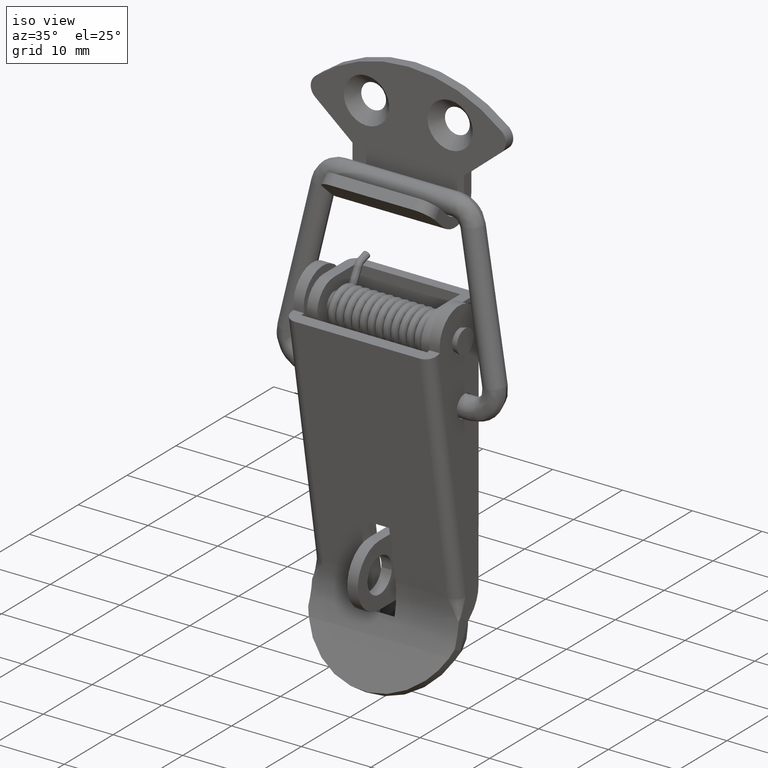
[diagram: clean part render]
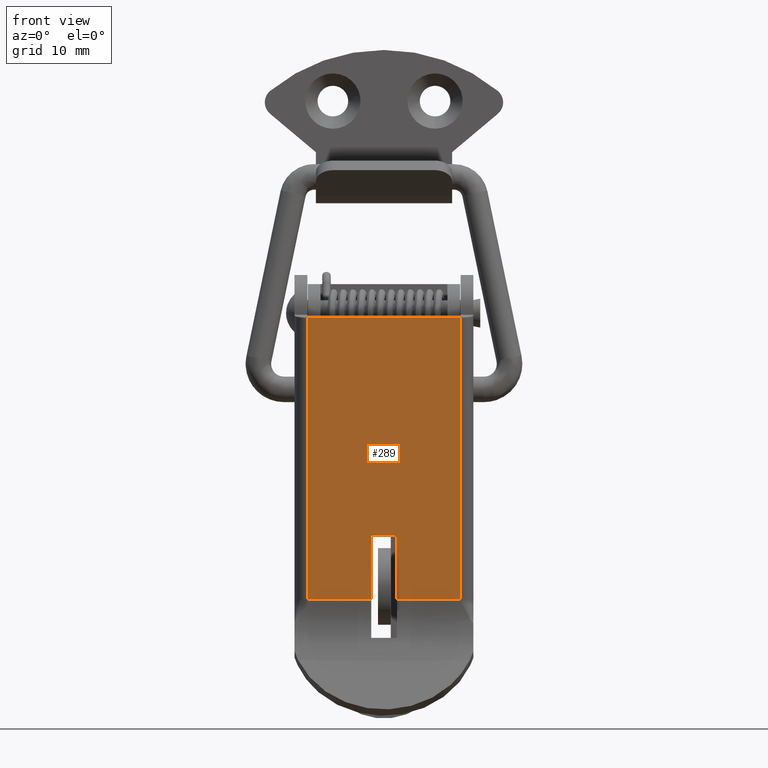
[diagram: tour spotlight — one face highlighted and labeled with its STEP entity id]
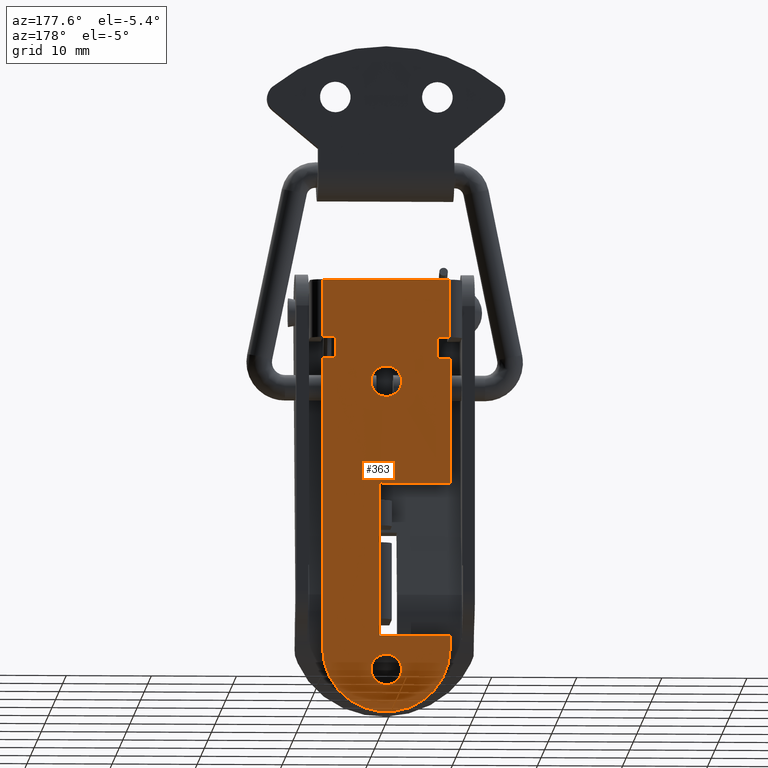
[diagram: tour spotlight — one face highlighted and labeled with its STEP entity id]
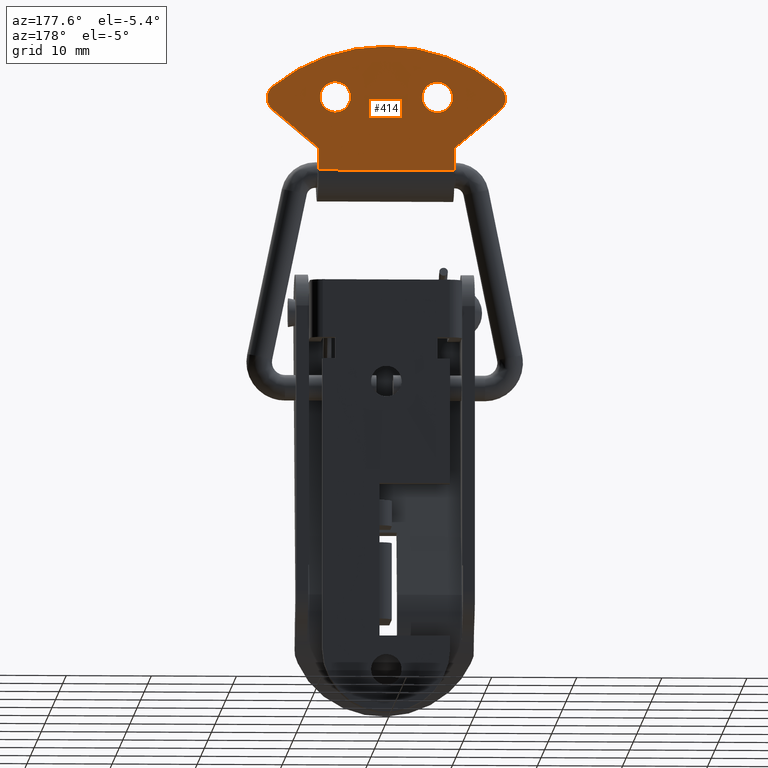
[diagram: tour spotlight — one face highlighted and labeled with its STEP entity id]
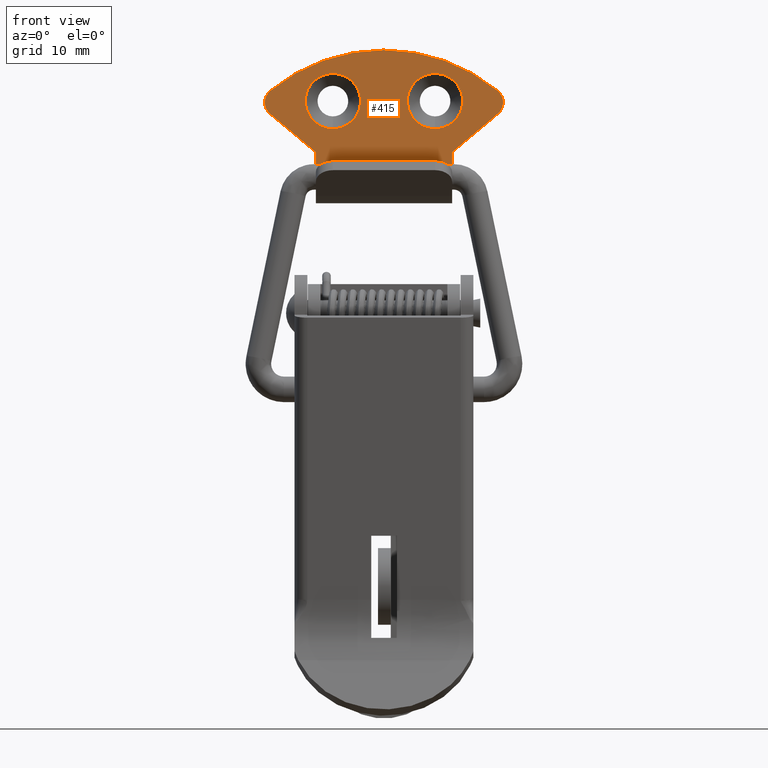
[diagram: tour spotlight — one face highlighted and labeled with its STEP entity id]
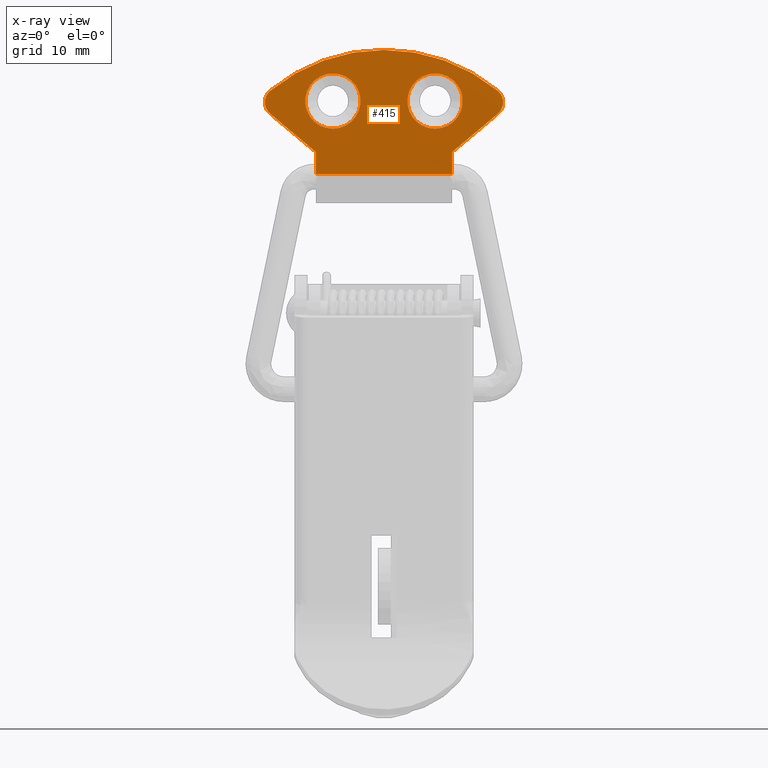
[diagram: x-ray of the same camera — body ghosted, this tour face saturated]
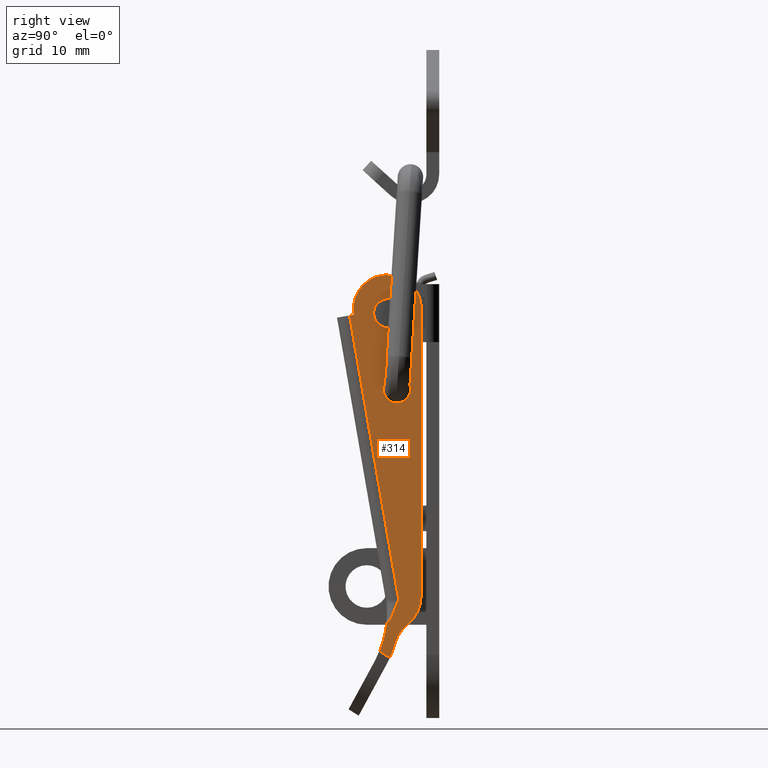
[diagram: tour spotlight — one face highlighted and labeled with its STEP entity id]
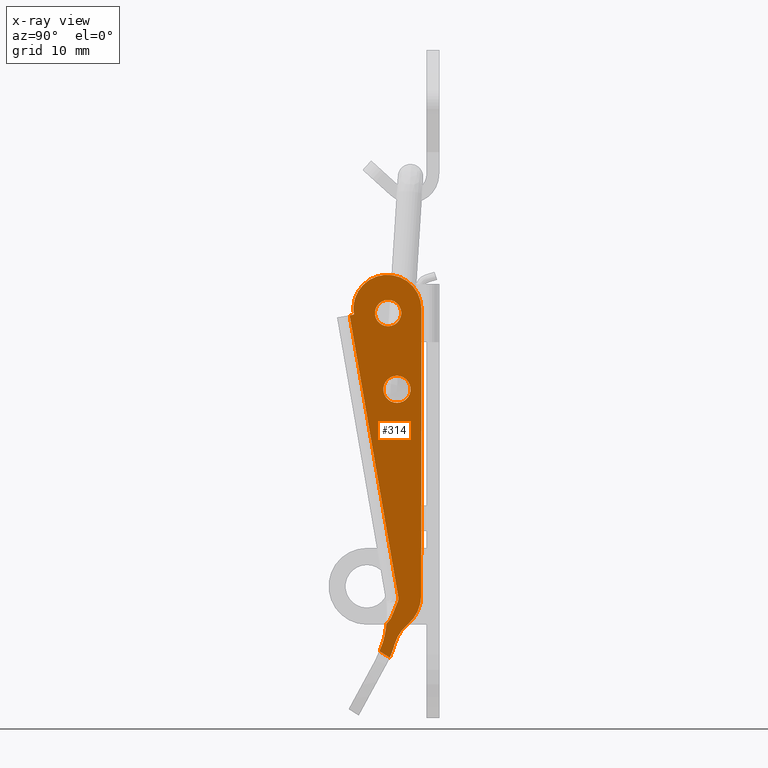
[diagram: x-ray of the same camera — body ghosted, this tour face saturated]
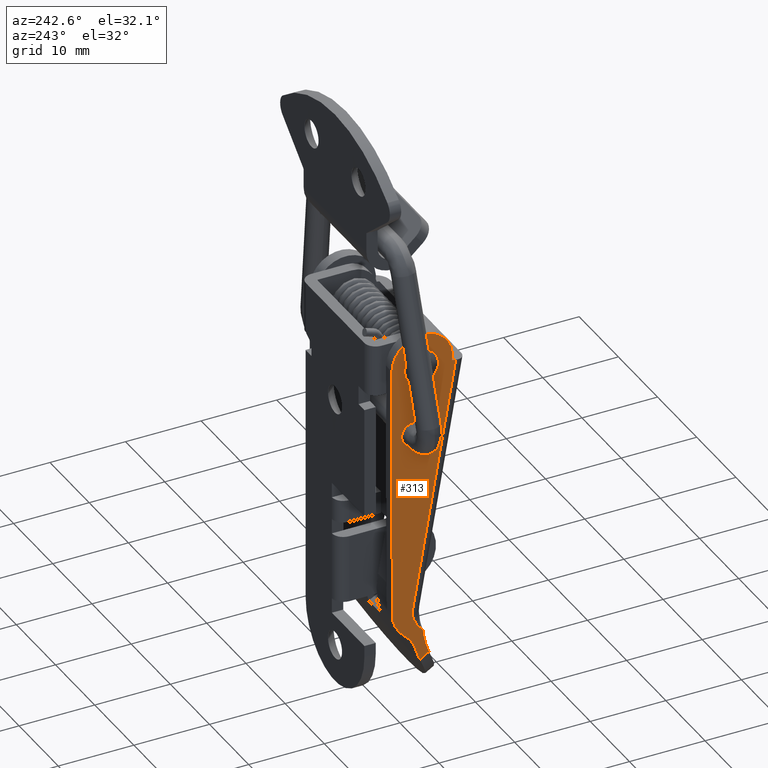
[diagram: tour spotlight — one face highlighted and labeled with its STEP entity id]
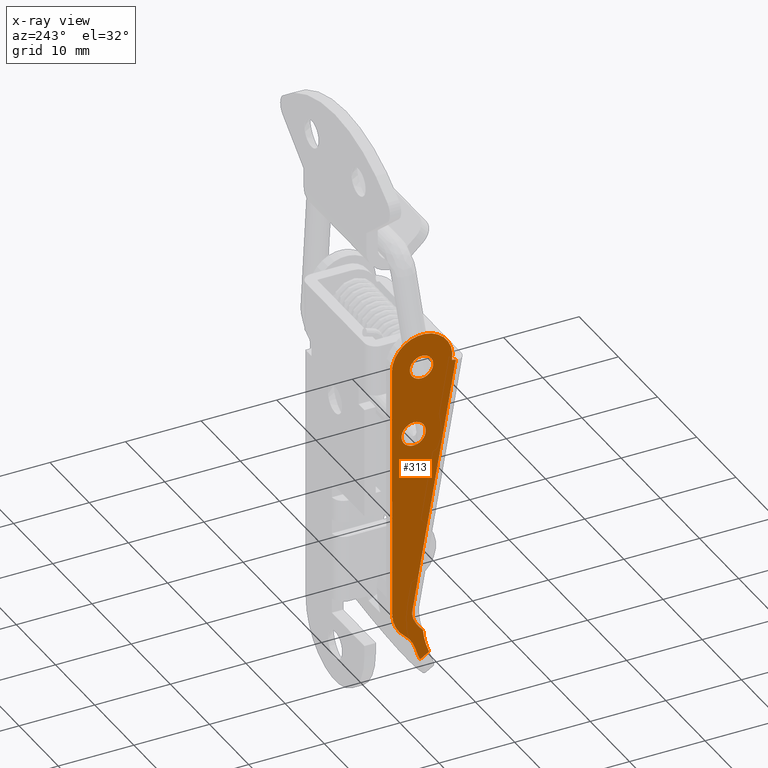
[diagram: x-ray of the same camera — body ghosted, this tour face saturated]
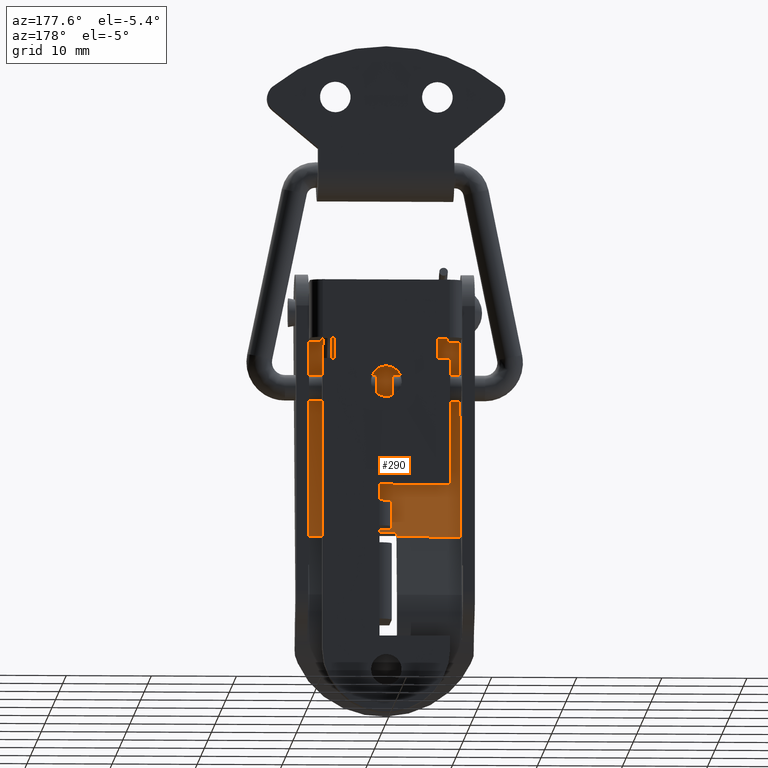
[diagram: tour spotlight — one face highlighted and labeled with its STEP entity id]
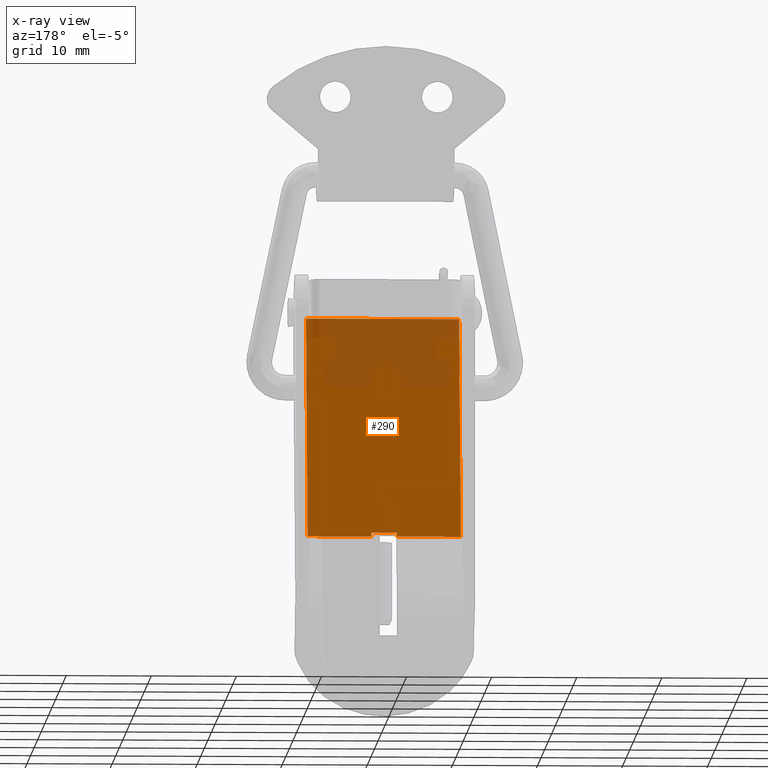
[diagram: x-ray of the same camera — body ghosted, this tour face saturated]
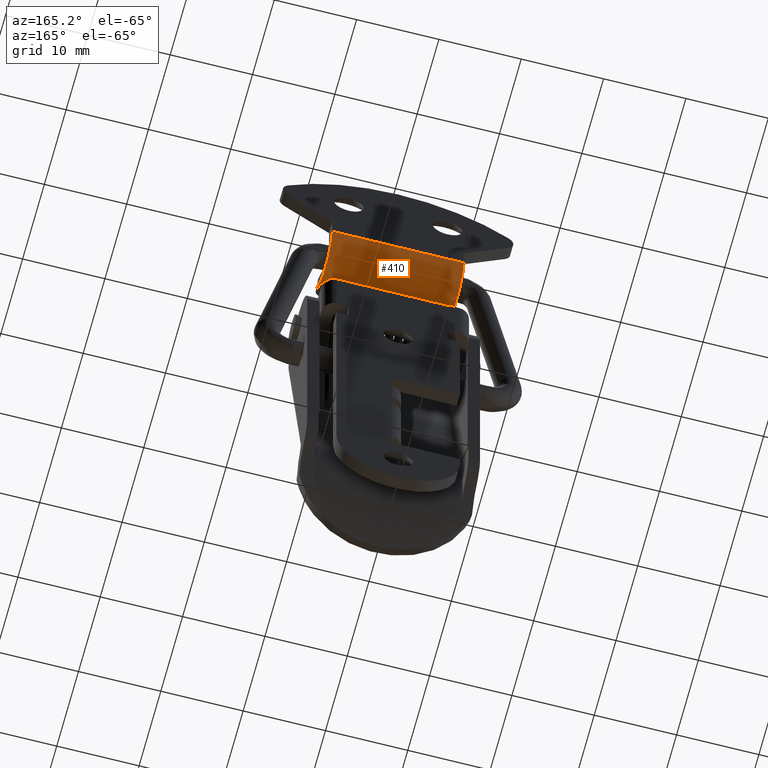
[diagram: tour spotlight — one face highlighted and labeled with its STEP entity id]
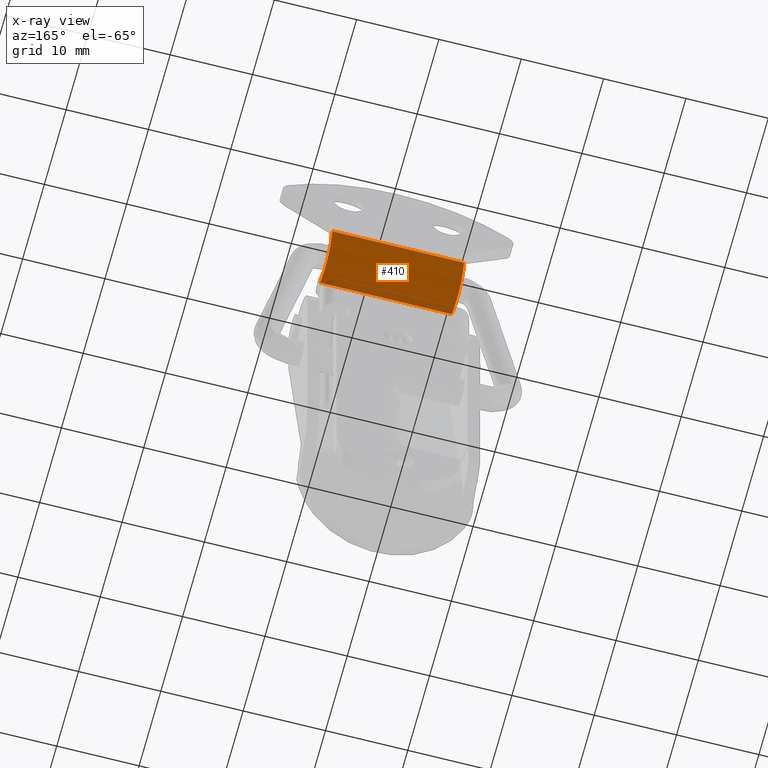
[diagram: x-ray of the same camera — body ghosted, this tour face saturated]
A machine part: a face-by-face anatomy tour. The part has 173 B-rep faces; the first image is the clean iso view, then the 8 largest visible faces are spotlighted one at a time (largest first), each with its STEP entity span.

Face 1 — front view, entity #289. In plain terms, the highlighted planar face has unit normal (-0, -0.9854, -0.1702).
Definition (entity closure, byte-faithful):
#289=ADVANCED_FACE('',(#724),#723,.T.);
#723=PLANE('',#31866);
#724=FACE_OUTER_BOUND('',#31867,.T.);
#31863=CARTESIAN_POINT('',(-2.30230112282E+00,-1.08000000000E+01,-5.18756360574E+01));
#31864=DIRECTION('',(-9.85406666378E-01,0.00000000000E+00,-1.70216632141E-01));
#31865=DIRECTION('',(-1.70216632141E-01,0.00000000000E+00,9.85406666378E-01));
#31866=AXIS2_PLACEMENT_3D('',#31863,#31864,#31865);
#31867=EDGE_LOOP('',(#33938,#33939,#33940,#33941,#33942,#33943,#33944,#33945));
#33938=ORIENTED_EDGE('',*,*,#34814,.T.);
#33939=ORIENTED_EDGE('',*,*,#34815,.T.);
#33940=ORIENTED_EDGE('',*,*,#34816,.F.);
#33941=ORIENTED_EDGE('',*,*,#34817,.F.);
#33942=ORIENTED_EDGE('',*,*,#34818,.T.);
#33943=ORIENTED_EDGE('',*,*,#34819,.T.);
#33944=ORIENTED_EDGE('',*,*,#34820,.F.);
#33945=ORIENTED_EDGE('',*,*,#34809,.T.);
#34809=EDGE_CURVE('',#35767,#35753,#35780,.T.);
#34814=EDGE_CURVE('',#35753,#35814,#35815,.T.);
#34815=EDGE_CURVE('',#35814,#35821,#35822,.T.);
#34816=EDGE_CURVE('',#35828,#35821,#35829,.T.);
#34817=EDGE_CURVE('',#35835,#35828,#35836,.T.);
#34818=EDGE_CURVE('',#35835,#35842,#35843,.T.);
#34819=EDGE_CURVE('',#35842,#35849,#35850,.T.);
#34820=EDGE_CURVE('',#35767,#35849,#35856,.T.);
#35753=VERTEX_POINT('',#39105);
#35767=VERTEX_POINT('',#39138);
#35780=LINE('',#39167,#39168);
#35814=VERTEX_POINT('',#39186);
#35815=LINE('',#39187,#39188);
#35821=VERTEX_POINT('',#39190);
#35822=LINE('',#39191,#39192);
#35828=VERTEX_POINT('',#39194);
#35829=LINE('',#39195,#39196);
#35835=VERTEX_POINT('',#39198);
#35836=LINE('',#39199,#39200);
#35842=VERTEX_POINT('',#39202);
#35843=LINE('',#39203,#39204);
#35849=VERTEX_POINT('',#39206);
#35850=LINE('',#39207,#39208);
#35856=LINE('',#39210,#39211);
#39105=CARTESIAN_POINT('',(-2.87463738485E+00,9.00000000000E+00,-4.85623055068E+01));
#39138=CARTESIAN_POINT('',(-8.59800000000E+00,9.00000000000E+00,-1.54290000000E+01));
#39167=CARTESIAN_POINT('',(-8.59800000000E+00,9.00000000000E+00,-1.54290000000E+01));
#39168=VECTOR('',#39169,3.36239916344E+01);
#39169=DIRECTION('',(1.70216632141E-01,0.00000000000E+00,-9.85406666378E-01));
#39186=CARTESIAN_POINT('',(-2.87463738485E+00,1.50000000000E+00,-4.85623055068E+01));
#39187=CARTESIAN_POINT('',(-2.87463738485E+00,9.00000000000E+00,-4.85623055068E+01));
#39188=VECTOR('',#39189,7.50000000000E+00);
#39189=DIRECTION('',(0.00000000000E+00,-1.00000000000E+00,0.00000000000E+00));
#39190=CARTESIAN_POINT('',(-4.17236741092E+00,1.50000000000E+00,-4.10495742140E+01));
#39191=CARTESIAN_POINT('',(-2.87463738485E+00,1.50000000000E+00,-4.85623055068E+01));
#39192=VECTOR('',#39193,7.62399073310E+00);
#39193=DIRECTION('',(-1.70216632142E-01,0.00000000000E+00,9.85406666378E-01));
#39194=CARTESIAN_POINT('',(-4.17236741092E+00,-1.50000000000E+00,-4.10495742140E+01));
#39195=CARTESIAN_POINT('',(-4.17236741092E+00,-1.50000000000E+00,-4.10495742140E+01));
#39196=VECTOR('',#39197,3.00000000000E+00);
#39197=DIRECTION('',(0.00000000000E+00,1.00000000000E+00,0.00000000000E+00));
#39198=CARTESIAN_POINT('',(-2.87463738485E+00,-1.50000000000E+00,-4.85623055068E+01));
#39199=CARTESIAN_POINT('',(-2.87463738485E+00,-1.50000000000E+00,-4.85623055068E+01));
#39200=VECTOR('',#39201,7.62399073310E+00);
#39201=DIRECTION('',(-1.70216632142E-01,0.00000000000E+00,9.85406666378E-01));
#39202=CARTESIAN_POINT('',(-2.87463738485E+00,-9.00000000000E+00,-4.85623055068E+01));
#39203=CARTESIAN_POINT('',(-2.87463738485E+00,-1.50000000000E+00,-4.85623055068E+01));
#39204=VECTOR('',#39205,7.50000000000E+00);
#39205=DIRECTION('',(0.00000000000E+00,-1.00000000000E+00,0.00000000000E+00));
#39206=CARTESIAN_POINT('',(-8.59800000000E+00,-9.00000000000E+00,-1.54290000000E+01));
#39207=CARTESIAN_POINT('',(-2.87463738485E+00,-9.00000000000E+00,-4.85623055068E+01));
#39208=VECTOR('',#39209,3.36239916344E+01);
#39209=DIRECTION('',(-1.70216632141E-01,0.00000000000E+00,9.85406666378E-01));
#39210=CARTESIAN_POINT('',(-8.59800000000E+00,9.00000000000E+00,-1.54290000000E+01));
#39211=VECTOR('',#39212,1.80000000000E+01);
#39212=DIRECTION('',(0.00000000000E+00,-1.00000000000E+00,0.00000000000E+00));

Face 2 — auxiliary view, entity #363. In plain terms, the highlighted planar face has unit normal (0, 1, 0).
Definition (entity closure, byte-faithful):
#363=ADVANCED_FACE('',(#1478,#1479,#1480),#1477,.T.);
#1477=PLANE('',#33205);
#1478=FACE_OUTER_BOUND('',#33206,.T.);
#1479=FACE_BOUND('',#33207,.T.);
#1480=FACE_BOUND('',#33208,.T.);
#33202=CARTESIAN_POINT('',(3.40000000000E+00,-9.00000000000E+00,-6.40000000000E+00));
#33203=DIRECTION('',(1.00000000000E+00,-0.00000000000E+00,0.00000000000E+00));
#33204=DIRECTION('',(0.00000000000E+00,0.00000000000E+00,-1.00000000000E+00));
#33205=AXIS2_PLACEMENT_3D('',#33202,#33203,#33204);
#33206=EDGE_LOOP('',(#34365,#34366,#34367,#34368,#34369,#34370,#34371,#34372,#34373,#34374,#34375,#34376,#34377,#34378,#34379,#34380,#34381,#34382,#34383,#34384));
#33207=EDGE_LOOP('',(#34385,#34386,#34387));
#33208=EDGE_LOOP('',(#34388,#34389,#34390));
#34365=ORIENTED_EDGE('',*,*,#34981,.F.);
#34366=ORIENTED_EDGE('',*,*,#34947,.T.);
#34367=ORIENTED_EDGE('',*,*,#34977,.F.);
#34368=ORIENTED_EDGE('',*,*,#34950,.T.);
#34369=ORIENTED_EDGE('',*,*,#35015,.F.);
#34370=ORIENTED_EDGE('',*,*,#35012,.F.);
#34371=ORIENTED_EDGE('',*,*,#35009,.F.);
#34372=ORIENTED_EDGE('',*,*,#35006,.F.);
#34373=ORIENTED_EDGE('',*,*,#35002,.F.);
#34374=ORIENTED_EDGE('',*,*,#35036,.F.);
#34375=ORIENTED_EDGE('',*,*,#34968,.T.);
#34376=ORIENTED_EDGE('',*,*,#35041,.T.);
#34377=ORIENTED_EDGE('',*,*,#34970,.T.);
#34378=ORIENTED_EDGE('',*,*,#35033,.F.);
#34379=ORIENTED_EDGE('',*,*,#34999,.F.);
#34380=ORIENTED_EDGE('',*,*,#34996,.F.);
#34381=ORIENTED_EDGE('',*,*,#34993,.F.);
#34382=ORIENTED_EDGE('',*,*,#34990,.T.);
#34383=ORIENTED_EDGE('',*,*,#34987,.F.);
#34384=ORIENTED_EDGE('',*,*,#34984,.F.);
#34385=ORIENTED_EDGE('',*,*,#35046,.T.);
#34386=ORIENTED_EDGE('',*,*,#35047,.T.);
#34387=ORIENTED_EDGE('',*,*,#35048,.T.);
#34388=ORIENTED_EDGE('',*,*,#35049,.T.);
#34389=ORIENTED_EDGE('',*,*,#35050,.T.);
#34390=ORIENTED_EDGE('',*,*,#35051,.T.);
#34947=EDGE_CURVE('',#36702,#36695,#36703,.T.);
#34950=EDGE_CURVE('',#36723,#36715,#36724,.T.);
#34968=EDGE_CURVE('',#36828,#36842,#36849,.T.);
#34970=EDGE_CURVE('',#36863,#36855,#36864,.T.);
#34977=EDGE_CURVE('',#36723,#36695,#36908,.T.);
#34981=EDGE_CURVE('',#36702,#36932,#36933,.T.);
#34984=EDGE_CURVE('',#36932,#36952,#36953,.T.);
#34987=EDGE_CURVE('',#36952,#36972,#36973,.T.);
#34990=EDGE_CURVE('',#36992,#36972,#36993,.T.);
#34993=EDGE_CURVE('',#36992,#37012,#37013,.T.);
#34996=EDGE_CURVE('',#37012,#37032,#37033,.T.);
#34999=EDGE_CURVE('',#37032,#37052,#37053,.T.);
#35002=EDGE_CURVE('',#37072,#37073,#37074,.T.);
#35006=EDGE_CURVE('',#37073,#37100,#37101,.T.);
#35009=EDGE_CURVE('',#37100,#37120,#37121,.T.);
#35012=EDGE_CURVE('',#37120,#37140,#37141,.T.);
#35015=EDGE_CURVE('',#37140,#36715,#37160,.T.);
#35033=EDGE_CURVE('',#37052,#36855,#37279,.T.);
#35036=EDGE_CURVE('',#36828,#37072,#37298,.T.);
#35041=EDGE_CURVE('',#36842,#36863,#37330,.T.);
#35046=EDGE_CURVE('',#37361,#37362,#37363,.T.);
#35047=EDGE_CURVE('',#37362,#37369,#37370,.T.);
#35048=EDGE_CURVE('',#37369,#37361,#37376,.T.);
#35049=EDGE_CURVE('',#37382,#37383,#37384,.T.);
#35050=EDGE_CURVE('',#37383,#37390,#37391,.T.);
#35051=EDGE_CURVE('',#37390,#37382,#37397,.T.);
#36695=VERTEX_POINT('',#39775);
#36702=VERTEX_POINT('',#39780);
#36703=LINE('',#39781,#39782);
#36715=VERTEX_POINT('',#39788);
#36723=VERTEX_POINT('',#39794);
#36724=LINE('',#39795,#39796);
#36828=VERTEX_POINT('',#39861);
#36842=VERTEX_POINT('',#39870);
#36849=LINE('',#39875,#39876);
#36855=VERTEX_POINT('',#39878);
#36863=VERTEX_POINT('',#39884);
#36864=LINE('',#39885,#39886);
#36908=LINE('',#39909,#39910);
#36932=VERTEX_POINT('',#39921);
#36933=LINE('',#39922,#39923);
#36952=VERTEX_POINT('',#39932);
#36953=LINE('',#39933,#39934);
#36972=VERTEX_POINT('',#39943);
#36973=LINE('',#39944,#39945);
#36992=VERTEX_POINT('',#39954);
#36993=CIRCLE('',#39958,7.50000000000E+00);
#37012=VERTEX_POINT('',#39967);
#37013=LINE('',#39968,#39969);
#37032=VERTEX_POINT('',#39978);
#37033=LINE('',#39979,#39980);
#37052=VERTEX_POINT('',#39989);
#37053=LINE('',#39990,#39991);
#37072=VERTEX_POINT('',#40000);
#37073=VERTEX_POINT('',#40001);
#37074=LINE('',#40002,#40003);
#37100=VERTEX_POINT('',#40016);
#37101=LINE('',#40017,#40018);
#37120=VERTEX_POINT('',#40027);
#37121=LINE('',#40028,#40029);
#37140=VERTEX_POINT('',#40038);
#37141=LINE('',#40039,#40040);
#37160=LINE('',#40049,#40050);
#37279=LINE('',#40124,#40125);
#37298=LINE('',#40134,#40135);
#37330=LINE('',#40152,#40153);
#37361=VERTEX_POINT('',#40169);
#37362=VERTEX_POINT('',#40170);
#37363=(BOUNDED_CURVE() B_SPLINE_CURVE(2,(#40171,#40172,#40173,#40174,#40175),.UNSPECIFIED.,.F.,.F.) B_SPLINE_CURVE_WITH_KNOTS((3,2,3),(0.00000000000E+00,5.00000000000E-01,1.00000000000E+00),.UNSPECIFIED.) CURVE() GEOMETRIC_REPRESENTATION_ITEM() RATIONAL_B_SPLINE_CURVE((1.00000000000E+00,7.67676141831E-01,1.00000000000E+00,7.67676141831E-01,1.00000000000E+00)) REPRESENTATION_ITEM('') );
#37369=VERTEX_POINT('',#40176);
#37370=(BOUNDED_CURVE() B_SPLINE_CURVE(2,(#40177,#40178,#40179,#40180,#40181),.UNSPECIFIED.,.F.,.F.) B_SPLINE_CURVE_WITH_KNOTS((3,2,3),(0.00000000000E+00,5.00000000000E-01,1.00000000000E+00),.UNSPECIFIED.) CURVE() GEOMETRIC_REPRESENTATION_ITEM() RATIONAL_B_SPLINE_CURVE((1.00000000000E+00,7.07118046499E-01,1.00000000000E+00,7.07118046499E-01,1.00000000000E+00)) REPRESENTATION_ITEM('') );
#37376=CIRCLE('',#40185,1.80000000024E+00);
#37382=VERTEX_POINT('',#40186);
#37383=VERTEX_POINT('',#40187);
#37384=(BOUNDED_CURVE() B_SPLINE_CURVE(2,(#40188,#40189,#40190,#40191,#40192),.UNSPECIFIED.,.F.,.F.) B_SPLINE_CURVE_WITH_KNOTS((3,2,3),(0.00000000000E+00,5.00000000000E-01,1.00000000000E+00),.UNSPECIFIED.) CURVE() GEOMETRIC_REPRESENTATION_ITEM() RATIONAL_B_SPLINE_CURVE((1.00000000000E+00,7.67676141831E-01,1.00000000000E+00,7.67676141831E-01,1.00000000000E+00)) REPRESENTATION_ITEM('') );
#37390=VERTEX_POINT('',#40193);
#37391=(BOUNDED_CURVE() B_SPLINE_CURVE(2,(#40194,#40195,#40196,#40197,#40198),.UNSPECIFIED.,.F.,.F.) B_SPLINE_CURVE_WITH_KNOTS((3,2,3),(0.00000000000E+00,5.00000000000E-01,1.00000000000E+00),.UNSPECIFIED.) CURVE() GEOMETRIC_REPRESENTATION_ITEM() RATIONAL_B_SPLINE_CURVE((1.00000000000E+00,7.07118046499E-01,1.00000000000E+00,7.07118046499E-01,1.00000000000E+00)) REPRESENTATION_ITEM('') );
#37397=CIRCLE('',#40202,1.80000000024E+00);
#39775=CARTESIAN_POINT('',(3.40000000000E+00,-8.00000000000E-01,-4.25000000000E+01));
#39780=CARTESIAN_POINT('',(3.40000000000E+00,-8.00000000000E-01,-5.15000000000E+01));
#39781=CARTESIAN_POINT('',(3.40000000000E+00,-8.00000000000E-01,-5.15000000000E+01));
#39782=VECTOR('',#39783,9.00000000000E+00);
#39783=DIRECTION('',(0.00000000000E+00,0.00000000000E+00,1.00000000000E+00));
#39788=CARTESIAN_POINT('',(3.40000000000E+00,-8.00000000000E-01,-3.75000000000E+01));
#39794=CARTESIAN_POINT('',(3.40000000000E+00,-8.00000000000E-01,-4.05000000000E+01));
#39795=CARTESIAN_POINT('',(3.40000000000E+00,-8.00000000000E-01,-4.05000000000E+01));
#39796=VECTOR('',#39797,3.00000000000E+00);
#39797=DIRECTION('',(0.00000000000E+00,0.00000000000E+00,1.00000000000E+00));
#39861=CARTESIAN_POINT('',(3.40000000000E+00,7.45000000000E+00,-1.83000000000E+01));
#39870=CARTESIAN_POINT('',(3.40000000000E+00,7.45000000000E+00,-1.15000000000E+01));
#39875=CARTESIAN_POINT('',(3.40000000000E+00,7.45000000000E+00,-1.83000000000E+01));
#39876=VECTOR('',#39877,6.80000000000E+00);
#39877=DIRECTION('',(0.00000000000E+00,0.00000000000E+00,1.00000000000E+00));
#39878=CARTESIAN_POINT('',(3.40000000000E+00,-7.45000000000E+00,-1.83000000000E+01));
#39884=CARTESIAN_POINT('',(3.40000000000E+00,-7.45000000000E+00,-1.15000000000E+01));
#39885=CARTESIAN_POINT('',(3.40000000000E+00,-7.45000000000E+00,-1.15000000000E+01));
#39886=VECTOR('',#39887,6.80000000000E+00);
#39887=DIRECTION('',(0.00000000000E+00,0.00000000000E+00,-1.00000000000E+00));
#39909=CARTESIAN_POINT('',(3.40000000000E+00,-8.00000000000E-01,-4.05000000000E+01));
#39910=VECTOR('',#39911,2.00000000000E+00);
#39911=DIRECTION('',(0.00000000000E+00,0.00000000000E+00,-1.00000000000E+00));
#39921=CARTESIAN_POINT('',(3.40000000000E+00,-8.00000000000E-01,-5.35000000000E+01));
#39922=CARTESIAN_POINT('',(3.40000000000E+00,-8.00000000000E-01,-5.15000000000E+01));
#39923=VECTOR('',#39924,2.00000000000E+00);
#39924=DIRECTION('',(0.00000000000E+00,0.00000000000E+00,-1.00000000000E+00));
#39932=CARTESIAN_POINT('',(3.40000000000E+00,7.50000000000E+00,-5.35000000000E+01));
#39933=CARTESIAN_POINT('',(3.40000000000E+00,-8.00000000000E-01,-5.35000000000E+01));
#39934=VECTOR('',#39935,8.30000000000E+00);
#39935=DIRECTION('',(0.00000000000E+00,1.00000000000E+00,0.00000000000E+00));
#39943=CARTESIAN_POINT('',(3.40000000000E+00,7.50000000000E+00,-5.50000000000E+01));
#39944=CARTESIAN_POINT('',(3.40000000000E+00,7.50000000000E+00,-5.35000000000E+01));
#39945=VECTOR('',#39946,1.50000000000E+00);
#39946=DIRECTION('',(0.00000000000E+00,0.00000000000E+00,-1.00000000000E+00));
#39954=CARTESIAN_POINT('',(3.40000000000E+00,-7.50000000000E+00,-5.50000000000E+01));
#39955=CARTESIAN_POINT('',(3.40000000000E+00,0.00000000000E+00,-5.50000000000E+01));
#39956=DIRECTION('',(1.00000000000E+00,0.00000000000E+00,0.00000000000E+00));
#39957=DIRECTION('',(-0.00000000000E+00,1.00000000000E+00,-0.00000000000E+00));
#39958=AXIS2_PLACEMENT_3D('',#39955,#39956,#39957);
#39967=CARTESIAN_POINT('',(3.40000000000E+00,-7.50000000000E+00,-2.08000000000E+01));
#39968=CARTESIAN_POINT('',(3.40000000000E+00,-7.50000000000E+00,-5.50000000000E+01));
#39969=VECTOR('',#39970,3.42000000000E+01);
#39970=DIRECTION('',(0.00000000000E+00,0.00000000000E+00,1.00000000000E+00));
#39978=CARTESIAN_POINT('',(3.40000000000E+00,-6.00000000000E+00,-2.08000000000E+01));
#39979=CARTESIAN_POINT('',(3.40000000000E+00,-7.50000000000E+00,-2.08000000000E+01));
#39980=VECTOR('',#39981,1.50000000000E+00);
#39981=DIRECTION('',(0.00000000000E+00,1.00000000000E+00,0.00000000000E+00));
#39989=CARTESIAN_POINT('',(3.40000000000E+00,-6.00000000000E+00,-1.83000000000E+01));
#39990=CARTESIAN_POINT('',(3.40000000000E+00,-6.00000000000E+00,-2.08000000000E+01));
#39991=VECTOR('',#39992,2.50000000000E+00);
#39992=DIRECTION('',(0.00000000000E+00,0.00000000000E+00,1.00000000000E+00));
#40000=CARTESIAN_POINT('',(3.40000000000E+00,6.00000000000E+00,-1.83000000000E+01));
#40001=CARTESIAN_POINT('',(3.40000000000E+00,6.00000000000E+00,-2.08000000000E+01));
#40002=CARTESIAN_POINT('',(3.40000000000E+00,6.00000000000E+00,-1.83000000000E+01));
#40003=VECTOR('',#40004,2.50000000000E+00);
#40004=DIRECTION('',(0.00000000000E+00,0.00000000000E+00,-1.00000000000E+00));
#40016=CARTESIAN_POINT('',(3.40000000000E+00,7.50000000000E+00,-2.08000000000E+01));
#40017=CARTESIAN_POINT('',(3.40000000000E+00,6.00000000000E+00,-2.08000000000E+01));
#40018=VECTOR('',#40019,1.50000000000E+00);
#40019=DIRECTION('',(0.00000000000E+00,1.00000000000E+00,0.00000000000E+00));
#40027=CARTESIAN_POINT('',(3.40000000000E+00,7.50000000000E+00,-3.55000000000E+01));
#40028=CARTESIAN_POINT('',(3.40000000000E+00,7.50000000000E+00,-2.08000000000E+01));
#40029=VECTOR('',#40030,1.47000000000E+01);
#40030=DIRECTION('',(0.00000000000E+00,0.00000000000E+00,-1.00000000000E+00));
#40038=CARTESIAN_POINT('',(3.40000000000E+00,-8.00000000000E-01,-3.55000000000E+01));
#40039=CARTESIAN_POINT('',(3.40000000000E+00,7.50000000000E+00,-3.55000000000E+01));
#40040=VECTOR('',#40041,8.30000000000E+00);
#40041=DIRECTION('',(0.00000000000E+00,-1.00000000000E+00,0.00000000000E+00));
#40049=CARTESIAN_POINT('',(3.40000000000E+00,-8.00000000000E-01,-3.55000000000E+01));
#40050=VECTOR('',#40051,2.00000000000E+00);
#40051=DIRECTION('',(0.00000000000E+00,0.00000000000E+00,-1.00000000000E+00));
#40124=CARTESIAN_POINT('',(3.40000000000E+00,-6.00000000000E+00,-1.83000000000E+01));
#40125=VECTOR('',#40126,1.45000000000E+00);
#40126=DIRECTION('',(0.00000000000E+00,-1.00000000000E+00,0.00000000000E+00));
#40134=CARTESIAN_POINT('',(3.40000000000E+00,7.45000000000E+00,-1.83000000000E+01));
#40135=VECTOR('',#40136,1.45000000000E+00);
#40136=DIRECTION('',(0.00000000000E+00,-1.00000000000E+00,0.00000000000E+00));
#40152=CARTESIAN_POINT('',(3.40000000000E+00,7.45000000000E+00,-1.15000000000E+01));
#40153=VECTOR('',#40154,1.49000000000E+01);
#40154=DIRECTION('',(0.00000000000E+00,-1.00000000000E+00,0.00000000000E+00));
#40169=CARTESIAN_POINT('',(3.40000000000E+00,-4.28557719150E-17,-2.16999999995E+01));
#40170=CARTESIAN_POINT('',(3.40500000002E+00,6.32912353905E-01,-2.51850584418E+01));
#40171=CARTESIAN_POINT('',(3.40000000000E+00,1.77573371814E-16,-2.16999999995E+01));
#40172=CARTESIAN_POINT('',(3.40000000000E+00,1.50259769182E+00,-2.16999999993E+01));
#40173=CARTESIAN_POINT('',(3.40000000000E+00,1.77104175448E+00,-2.31784240280E+01));
#40174=CARTESIAN_POINT('',(3.40000000000E+00,2.03948581714E+00,-2.46568480568E+01));
#40175=CARTESIAN_POINT('',(3.40500000002E+00,6.32912353905E-01,-2.51850584418E+01));
#40176=CARTESIAN_POINT('',(3.40000000000E+00,-6.32912354121E-01,-2.18149415579E+01));
#40177=CARTESIAN_POINT('',(3.40500000002E+00,6.32912353905E-01,-2.51850584418E+01));
#40178=CARTESIAN_POINT('',(3.40000000000E+00,-1.05224010983E+00,-2.58178835785E+01));
#40179=CARTESIAN_POINT('',(3.40000000000E+00,-1.68507860753E+00,-2.41328586621E+01));
#40180=CARTESIAN_POINT('',(3.40000000000E+00,-2.31791710523E+00,-2.24478337458E+01));
#40181=CARTESIAN_POINT('',(3.40000000000E+00,-6.32912354121E-01,-2.18149415579E+01));
#40182=CARTESIAN_POINT('',(3.40000000000E+00,2.29685159781E-10,-2.34999999998E+01));
#40183=DIRECTION('',(-1.00000000000E+00,-9.30615937279E-17,7.55681681716E-16));
#40184=DIRECTION('',(-7.40148682980E-16,3.51617974590E-01,-9.36143578702E-01));
#40185=AXIS2_PLACEMENT_3D('',#40182,#40183,#40184);
#40186=CARTESIAN_POINT('',(3.40000000000E+00,-4.28557763610E-17,-5.56999999995E+01));
#40187=CARTESIAN_POINT('',(3.40500000002E+00,6.32912353905E-01,-5.91850584418E+01));
#40188=CARTESIAN_POINT('',(3.40000000000E+00,-6.21787210460E-16,-5.56999999995E+01));
#40189=CARTESIAN_POINT('',(3.40000000000E+00,1.50259769182E+00,-5.56999999993E+01));
#40190=CARTESIAN_POINT('',(3.40000000000E+00,1.77104175448E+00,-5.71784240280E+01));
#40191=CARTESIAN_POINT('',(3.40000000000E+00,2.03948581714E+00,-5.86568480568E+01));
#40192=CARTESIAN_POINT('',(3.40500000002E+00,6.32912353905E-01,-5.91850584418E+01));
#40193=CARTESIAN_POINT('',(3.40000000000E+00,-6.32912354121E-01,-5.58149415579E+01));
#40194=CARTESIAN_POINT('',(3.40500000002E+00,6.32912353905E-01,-5.91850584418E+01));
#40195=CARTESIAN_POINT('',(3.40000000000E+00,-1.05224010983E+00,-5.98178835785E+01));
#40196=CARTESIAN_POINT('',(3.40000000000E+00,-1.68507860753E+00,-5.81328586621E+01));
#40197=CARTESIAN_POINT('',(3.40000000000E+00,-2.31791710523E+00,-5.64478337458E+01));
#40198=CARTESIAN_POINT('',(3.40000000000E+00,-6.32912354121E-01,-5.58149415579E+01));
#40199=CARTESIAN_POINT('',(3.40000000000E+00,2.29691154985E-10,-5.74999999998E+01));
#40200=DIRECTION('',(-1.00000000000E+00,-9.30615937279E-17,7.55681681716E-16));
#40201=DIRECTION('',(-7.40148682980E-16,3.51617974590E-01,-9.36143578702E-01));
#40202=AXIS2_PLACEMENT_3D('',#40199,#40200,#40201);

Face 3 — auxiliary view, entity #414. In plain terms, the highlighted planar face has unit normal (0, 1, 0).
Definition (entity closure, byte-faithful):
#414=ADVANCED_FACE('',(#1993,#1994,#1995),#1992,.T.);
#1992=PLANE('',#33645);
#1993=FACE_OUTER_BOUND('',#33646,.T.);
#1994=FACE_BOUND('',#33647,.T.);
#1995=FACE_BOUND('',#33648,.T.);
#33642=CARTESIAN_POINT('',(-1.20245981733E+01,1.50000000000E+00,-1.00600000000E+01));
#33643=DIRECTION('',(-0.00000000000E+00,1.00000000000E+00,0.00000000000E+00));
#33644=DIRECTION('',(0.00000000000E+00,-0.00000000000E+00,1.00000000000E+00));
#33645=AXIS2_PLACEMENT_3D('',#33642,#33643,#33644);
#33646=EDGE_LOOP('',(#34627,#34628,#34629,#34630,#34631,#34632,#34633,#34634,#34635));
#33647=EDGE_LOOP('',(#34636,#34637));
#33648=EDGE_LOOP('',(#34638,#34639));
#34627=ORIENTED_EDGE('',*,*,#35159,.F.);
#34628=ORIENTED_EDGE('',*,*,#35164,.F.);
#34629=ORIENTED_EDGE('',*,*,#35162,.F.);
#34630=ORIENTED_EDGE('',*,*,#35165,.F.);
#34631=ORIENTED_EDGE('',*,*,#35166,.T.);
#34632=ORIENTED_EDGE('',*,*,#35167,.T.);
#34633=ORIENTED_EDGE('',*,*,#35168,.T.);
#34634=ORIENTED_EDGE('',*,*,#35143,.T.);
#34635=ORIENTED_EDGE('',*,*,#35150,.T.);
#34636=ORIENTED_EDGE('',*,*,#35169,.F.);
#34637=ORIENTED_EDGE('',*,*,#35170,.F.);
#34638=ORIENTED_EDGE('',*,*,#35171,.T.);
#34639=ORIENTED_EDGE('',*,*,#35172,.T.);
#35143=EDGE_CURVE('',#38004,#37997,#38005,.T.);
#35150=EDGE_CURVE('',#37997,#38045,#38053,.T.);
#35159=EDGE_CURVE('',#38105,#38045,#38112,.T.);
#35162=EDGE_CURVE('',#38126,#38133,#38134,.T.);
#35164=EDGE_CURVE('',#38133,#38105,#38146,.T.);
#35165=EDGE_CURVE('',#38152,#38126,#38153,.T.);
#35166=EDGE_CURVE('',#38152,#38159,#38160,.T.);
#35167=EDGE_CURVE('',#38159,#38166,#38167,.T.);
#35168=EDGE_CURVE('',#38166,#38004,#38173,.T.);
#35169=EDGE_CURVE('',#38179,#38180,#38181,.T.);
#35170=EDGE_CURVE('',#38180,#38179,#38187,.T.);
#35171=EDGE_CURVE('',#38193,#38194,#38195,.T.);
#35172=EDGE_CURVE('',#38194,#38193,#38201,.T.);
#37997=VERTEX_POINT('',#40560);
#38004=VERTEX_POINT('',#40565);
#38005=LINE('',#40566,#40567);
#38045=VERTEX_POINT('',#40589);
#38053=LINE('',#40595,#40596);
#38105=VERTEX_POINT('',#40625);
#38112=LINE('',#40629,#40630);
#38126=VERTEX_POINT('',#40638);
#38133=VERTEX_POINT('',#40642);
#38134=CIRCLE('',#40646,1.75010543235E+00);
#38146=LINE('',#40650,#40651);
#38152=VERTEX_POINT('',#40653);
#38153=CIRCLE('',#40657,2.10006220094E+01);
#38159=VERTEX_POINT('',#40658);
#38160=CIRCLE('',#40662,2.10006220094E+01);
#38166=VERTEX_POINT('',#40663);
#38167=CIRCLE('',#40667,1.75010543235E+00);
#38173=LINE('',#40668,#40669);
#38179=VERTEX_POINT('',#40671);
#38180=VERTEX_POINT('',#40672);
#38181=(BOUNDED_CURVE() B_SPLINE_CURVE(2,(#40673,#40674,#40675,#40676,#40677),.UNSPECIFIED.,.F.,.F.) B_SPLINE_CURVE_WITH_KNOTS((3,2,3),(0.00000000000E+00,5.00000000000E-01,1.00000000000E+00),.UNSPECIFIED.) CURVE() GEOMETRIC_REPRESENTATION_ITEM() RATIONAL_B_SPLINE_CURVE((1.00000000000E+00,7.07106781187E-01,1.00000000000E+00,7.07106781187E-01,1.00000000000E+00)) REPRESENTATION_ITEM('') );
#38187=(BOUNDED_CURVE() B_SPLINE_CURVE(2,(#40678,#40679,#40680,#40681,#40682),.UNSPECIFIED.,.F.,.F.) B_SPLINE_CURVE_WITH_KNOTS((3,2,3),(0.00000000000E+00,5.00000000000E-01,1.00000000000E+00),.UNSPECIFIED.) CURVE() GEOMETRIC_REPRESENTATION_ITEM() RATIONAL_B_SPLINE_CURVE((1.00000000000E+00,7.07106781187E-01,1.00000000000E+00,7.07106781187E-01,1.00000000000E+00)) REPRESENTATION_ITEM('') );
#38193=VERTEX_POINT('',#40683);
#38194=VERTEX_POINT('',#40684);
#38195=(BOUNDED_CURVE() B_SPLINE_CURVE(2,(#40685,#40686,#40687,#40688,#40689),.UNSPECIFIED.,.F.,.F.) B_SPLINE_CURVE_WITH_KNOTS((3,2,3),(0.00000000000E+00,5.00000000000E-01,1.00000000000E+00),.UNSPECIFIED.) CURVE() GEOMETRIC_REPRESENTATION_ITEM() RATIONAL_B_SPLINE_CURVE((1.00000000000E+00,7.07106781187E-01,1.00000000000E+00,7.07106781187E-01,1.00000000000E+00)) REPRESENTATION_ITEM('') );
#38201=(BOUNDED_CURVE() B_SPLINE_CURVE(2,(#40690,#40691,#40692,#40693,#40694),.UNSPECIFIED.,.F.,.F.) B_SPLINE_CURVE_WITH_KNOTS((3,2,3),(0.00000000000E+00,5.00000000000E-01,1.00000000000E+00),.UNSPECIFIED.) CURVE() GEOMETRIC_REPRESENTATION_ITEM() RATIONAL_B_SPLINE_CURVE((1.00000000000E+00,7.07106781187E-01,1.00000000000E+00,7.07106781187E-01,1.00000000000E+00)) REPRESENTATION_ITEM('') );
#40560=CARTESIAN_POINT('',(1.40000000000E+01,1.50000000000E+00,-8.60000000000E+00));
#40565=CARTESIAN_POINT('',(1.40000000000E+01,1.50000000000E+00,-6.00000000000E+00));
#40566=CARTESIAN_POINT('',(1.40000000000E+01,1.50000000000E+00,-6.00000000000E+00));
#40567=VECTOR('',#40568,2.60000000000E+00);
#40568=DIRECTION('',(0.00000000000E+00,0.00000000000E+00,-1.00000000000E+00));
#40589=CARTESIAN_POINT('',(-2.00000000000E+00,1.50000000000E+00,-8.60000000000E+00));
#40595=CARTESIAN_POINT('',(1.40000000000E+01,1.50000000000E+00,-8.60000000000E+00));
#40596=VECTOR('',#40597,1.60000000000E+01);
#40597=DIRECTION('',(-1.00000000000E+00,0.00000000000E+00,0.00000000000E+00));
#40625=CARTESIAN_POINT('',(-2.00000000000E+00,1.50000000000E+00,-6.00000000000E+00));
#40629=CARTESIAN_POINT('',(-2.00000000000E+00,1.50000000000E+00,-6.00000000000E+00));
#40630=VECTOR('',#40631,2.60000000000E+00);
#40631=DIRECTION('',(0.00000000000E+00,0.00000000000E+00,-1.00000000000E+00));
#40638=CARTESIAN_POINT('',(-7.36360629228E+00,1.50000000000E+00,1.19907713769E+00));
#40642=CARTESIAN_POINT('',(-7.34711298448E+00,1.50000000000E+00,-1.51439396334E+00));
#40643=CARTESIAN_POINT('',(-6.24990746197E+00,1.50000000000E+00,-1.50939136177E-01));
#40644=DIRECTION('',(0.00000000000E+00,-1.00000000000E+00,0.00000000000E+00));
#40645=DIRECTION('',(6.36360992729E-01,-0.00000000000E+00,-7.71391396720E-01));
#40646=AXIS2_PLACEMENT_3D('',#40643,#40644,#40645);
#40650=CARTESIAN_POINT('',(-7.34711298448E+00,1.50000000000E+00,-1.51439396334E+00));
#40651=VECTOR('',#40652,6.97941822682E+00);
#40652=DIRECTION('',(7.66125887675E-01,0.00000000000E+00,-6.42690535354E-01));
#40653=CARTESIAN_POINT('',(6.00000000000E+00,1.50000000000E+00,6.00000000000E+00));
#40654=CARTESIAN_POINT('',(6.00037037752E+00,1.50000000000E+00,-1.50006220061E+01));
#40655=DIRECTION('',(0.00000000000E+00,-1.00000000000E+00,0.00000000000E+00));
#40656=DIRECTION('',(1.76365023777E-05,-0.00000000000E+00,-9.99999999844E-01));
#40657=AXIS2_PLACEMENT_3D('',#40654,#40655,#40656);
#40658=CARTESIAN_POINT('',(1.93636062923E+01,1.50000000000E+00,1.19907713769E+00));
#40659=CARTESIAN_POINT('',(5.99962962248E+00,1.50000000000E+00,-1.50006220061E+01));
#40660=DIRECTION('',(-0.00000000000E+00,1.00000000000E+00,0.00000000000E+00));
#40661=DIRECTION('',(-1.76365023777E-05,-0.00000000000E+00,-9.99999999844E-01));
#40662=AXIS2_PLACEMENT_3D('',#40659,#40660,#40661);
#40663=CARTESIAN_POINT('',(1.93471129845E+01,1.50000000000E+00,-1.51439396334E+00));
#40664=CARTESIAN_POINT('',(1.82499074620E+01,1.50000000000E+00,-1.50939136177E-01));
#40665=DIRECTION('',(-0.00000000000E+00,1.00000000000E+00,0.00000000000E+00));
#40666=DIRECTION('',(-6.36360992725E-01,-0.00000000000E+00,-7.71391396723E-01));
#40667=AXIS2_PLACEMENT_3D('',#40664,#40665,#40666);
#40668=CARTESIAN_POINT('',(1.93471129845E+01,1.50000000000E+00,-1.51439396334E+00));
#40669=VECTOR('',#40670,6.97941822684E+00);
#40670=DIRECTION('',(-7.66125887676E-01,0.00000000000E+00,-6.42690535353E-01));
#40671=CARTESIAN_POINT('',(7.40148683083E-17,1.50000000000E+00,-1.80000000000E+00));
#40672=CARTESIAN_POINT('',(0.00000000000E+00,1.50500000000E+00,1.80000000000E+00));
#40673=CARTESIAN_POINT('',(4.40865567534E-16,1.50000000000E+00,-1.80000000000E+00));
#40674=CARTESIAN_POINT('',(-1.80000000000E+00,1.50000000000E+00,-1.80000000000E+00));
#40675=CARTESIAN_POINT('',(-1.80000000000E+00,1.50000000000E+00,-5.51083779457E-16));
#40676=CARTESIAN_POINT('',(-1.80000000000E+00,1.50000000000E+00,1.80000000000E+00));
#40677=CARTESIAN_POINT('',(0.00000000000E+00,1.50500000000E+00,1.80000000000E+00));
#40678=CARTESIAN_POINT('',(0.00000000000E+00,1.50500000000E+00,1.80000000000E+00));
#40679=CARTESIAN_POINT('',(1.80000000000E+00,1.50000000000E+00,1.80000000000E+00));
#40680=CARTESIAN_POINT('',(1.80000000000E+00,1.50000000000E+00,3.30647355611E-16));
#40681=CARTESIAN_POINT('',(1.80000000000E+00,1.50000000000E+00,-1.80000000000E+00));
#40682=CARTESIAN_POINT('',(4.40865567534E-16,1.50000000000E+00,-1.80000000000E+00));
#40683=CARTESIAN_POINT('',(1.20000000000E+01,1.50500000000E+00,1.80000000000E+00));
#40684=CARTESIAN_POINT('',(1.20000000000E+01,1.50000000000E+00,-1.80000000000E+00));
#40685=CARTESIAN_POINT('',(1.20000000000E+01,1.50500000000E+00,1.80000000000E+00));
#40686=CARTESIAN_POINT('',(1.02000000000E+01,1.50000000000E+00,1.80000000000E+00));
#40687=CARTESIAN_POINT('',(1.02000000000E+01,1.50000000000E+00,1.10218211923E-16));
#40688=CARTESIAN_POINT('',(1.02000000000E+01,1.50000000000E+00,-1.80000000000E+00));
#40689=CARTESIAN_POINT('',(1.20000000000E+01,1.50000000000E+00,-1.80000000000E+00));
#40690=CARTESIAN_POINT('',(1.20000000000E+01,1.50000000000E+00,-1.80000000000E+00));
#40691=CARTESIAN_POINT('',(1.38000000000E+01,1.50000000000E+00,-1.80000000000E+00));
#40692=CARTESIAN_POINT('',(1.38000000000E+01,1.50000000000E+00,-1.10218211923E-16));
#40693=CARTESIAN_POINT('',(1.38000000000E+01,1.50000000000E+00,1.80000000000E+00));
#40694=CARTESIAN_POINT('',(1.20000000000E+01,1.50500000000E+00,1.80000000000E+00));

Face 4 — front view, entity #415. An x-ray twin of the same camera follows (body ghosted, this face saturated) — the face is partly hidden behind the body. In plain terms, the highlighted planar face has unit normal (0, -1, 0).
Definition (entity closure, byte-faithful):
#415=ADVANCED_FACE('',(#2005,#2006,#2007),#2004,.T.);
#2004=PLANE('',#33652);
#2005=FACE_OUTER_BOUND('',#33653,.T.);
#2006=FACE_BOUND('',#33654,.T.);
#2007=FACE_BOUND('',#33655,.T.);
#33649=CARTESIAN_POINT('',(-1.20245981733E+01,2.07928963170E-13,7.46000000004E+00));
#33650=DIRECTION('',(0.00000000000E+00,-1.00000000000E+00,6.12323399574E-17));
#33651=DIRECTION('',(0.00000000000E+00,-6.12323399574E-17,-1.00000000000E+00));
#33652=AXIS2_PLACEMENT_3D('',#33649,#33650,#33651);
#33653=EDGE_LOOP('',(#34640,#34641,#34642,#34643,#34644,#34645,#34646,#34647,#34648));
#33654=EDGE_LOOP('',(#34649,#34650));
#33655=EDGE_LOOP('',(#34651,#34652));
#34640=ORIENTED_EDGE('',*,*,#35157,.F.);
#34641=ORIENTED_EDGE('',*,*,#35173,.F.);
#34642=ORIENTED_EDGE('',*,*,#35145,.T.);
#34643=ORIENTED_EDGE('',*,*,#35174,.F.);
#34644=ORIENTED_EDGE('',*,*,#35175,.F.);
#34645=ORIENTED_EDGE('',*,*,#35176,.F.);
#34646=ORIENTED_EDGE('',*,*,#35177,.T.);
#34647=ORIENTED_EDGE('',*,*,#35160,.T.);
#34648=ORIENTED_EDGE('',*,*,#35178,.T.);
#34649=ORIENTED_EDGE('',*,*,#35179,.T.);
#34650=ORIENTED_EDGE('',*,*,#35180,.T.);
#34651=ORIENTED_EDGE('',*,*,#35181,.F.);
#34652=ORIENTED_EDGE('',*,*,#35182,.F.);
#35145=EDGE_CURVE('',#38018,#38011,#38019,.T.);
#35157=EDGE_CURVE('',#38091,#38098,#38099,.T.);
#35160=EDGE_CURVE('',#38118,#38119,#38120,.T.);
#35173=EDGE_CURVE('',#38018,#38091,#38207,.T.);
#35174=EDGE_CURVE('',#38213,#38011,#38214,.T.);
#35175=EDGE_CURVE('',#38220,#38213,#38221,.T.);
#35176=EDGE_CURVE('',#38227,#38220,#38228,.T.);
#35177=EDGE_CURVE('',#38227,#38118,#38234,.T.);
#35178=EDGE_CURVE('',#38119,#38098,#38240,.T.);
#35179=EDGE_CURVE('',#38246,#38247,#38248,.T.);
#35180=EDGE_CURVE('',#38247,#38246,#38254,.T.);
#35181=EDGE_CURVE('',#38260,#38261,#38262,.T.);
#35182=EDGE_CURVE('',#38261,#38260,#38268,.T.);
#38011=VERTEX_POINT('',#40569);
#38018=VERTEX_POINT('',#40573);
#38019=LINE('',#40574,#40575);
#38091=VERTEX_POINT('',#40616);
#38098=VERTEX_POINT('',#40621);
#38099=LINE('',#40622,#40623);
#38118=VERTEX_POINT('',#40632);
#38119=VERTEX_POINT('',#40633);
#38120=CIRCLE('',#40637,1.75010543235E+00);
#38207=LINE('',#40695,#40696);
#38213=VERTEX_POINT('',#40698);
#38214=LINE('',#40699,#40700);
#38220=VERTEX_POINT('',#40702);
#38221=CIRCLE('',#40706,1.75010543235E+00);
#38227=VERTEX_POINT('',#40707);
#38228=CIRCLE('',#40711,2.10006220094E+01);
#38234=CIRCLE('',#40715,2.10006220094E+01);
#38240=LINE('',#40716,#40717);
#38246=VERTEX_POINT('',#40719);
#38247=VERTEX_POINT('',#40720);
#38248=CIRCLE('',#40724,3.25000000000E+00);
#38254=CIRCLE('',#40728,3.25000000000E+00);
#38260=VERTEX_POINT('',#40729);
#38261=VERTEX_POINT('',#40730);
#38262=CIRCLE('',#40734,3.25000000000E+00);
#38268=CIRCLE('',#40738,3.25000000000E+00);
#40569=CARTESIAN_POINT('',(1.40000000000E+01,2.07104775874E-13,-6.00000000000E+00));
#40573=CARTESIAN_POINT('',(1.40000000000E+01,2.06945571790E-13,-8.60000000000E+00));
#40574=CARTESIAN_POINT('',(1.40000000000E+01,2.06945571790E-13,-8.60000000000E+00));
#40575=VECTOR('',#40576,2.60000000000E+00);
#40576=DIRECTION('',(0.00000000000E+00,6.12323400000E-17,1.00000000000E+00));
#40616=CARTESIAN_POINT('',(-2.00000000000E+00,2.06945571790E-13,-8.60000000000E+00));
#40621=CARTESIAN_POINT('',(-2.00000000000E+00,2.07104775874E-13,-6.00000000000E+00));
#40622=CARTESIAN_POINT('',(-2.00000000000E+00,2.06945571790E-13,-8.60000000000E+00));
#40623=VECTOR('',#40624,2.60000000000E+00);
#40624=DIRECTION('',(0.00000000000E+00,6.12323400000E-17,1.00000000000E+00));
#40632=CARTESIAN_POINT('',(-7.36360629228E+00,0.00000000000E+00,1.19907713769E+00));
#40633=CARTESIAN_POINT('',(-7.34711298448E+00,0.00000000000E+00,-1.51439396334E+00));
#40634=CARTESIAN_POINT('',(-6.24990746197E+00,0.00000000000E+00,-1.50939136177E-01));
#40635=DIRECTION('',(0.00000000000E+00,-1.00000000000E+00,0.00000000000E+00));
#40636=DIRECTION('',(6.36360992729E-01,-0.00000000000E+00,-7.71391396720E-01));
#40637=AXIS2_PLACEMENT_3D('',#40634,#40635,#40636);
#40695=CARTESIAN_POINT('',(1.40000000000E+01,2.06945571790E-13,-8.60000000000E+00));
#40696=VECTOR('',#40697,1.60000000000E+01);
#40697=DIRECTION('',(-1.00000000000E+00,0.00000000000E+00,0.00000000000E+00));
#40698=CARTESIAN_POINT('',(1.93471129845E+01,0.00000000000E+00,-1.51439396334E+00));
#40699=CARTESIAN_POINT('',(1.93471129845E+01,0.00000000000E+00,-1.51439396334E+00));
#40700=VECTOR('',#40701,6.97941822684E+00);
#40701=DIRECTION('',(-7.66125887676E-01,2.96736445851E-14,-6.42690535353E-01));
#40702=CARTESIAN_POINT('',(1.93636062923E+01,0.00000000000E+00,1.19907713769E+00));
#40703=CARTESIAN_POINT('',(1.82499074620E+01,0.00000000000E+00,-1.50939136177E-01));
#40704=DIRECTION('',(-0.00000000000E+00,1.00000000000E+00,0.00000000000E+00));
#40705=DIRECTION('',(-6.36360992725E-01,-0.00000000000E+00,-7.71391396723E-01));
#40706=AXIS2_PLACEMENT_3D('',#40703,#40704,#40705);
#40707=CARTESIAN_POINT('',(6.00000000000E+00,0.00000000000E+00,6.00000000000E+00));
#40708=CARTESIAN_POINT('',(5.99962962248E+00,0.00000000000E+00,-1.50006220061E+01));
#40709=DIRECTION('',(-0.00000000000E+00,1.00000000000E+00,0.00000000000E+00));
#40710=DIRECTION('',(-1.76365023777E-05,-0.00000000000E+00,-9.99999999844E-01));
#40711=AXIS2_PLACEMENT_3D('',#40708,#40709,#40710);
#40712=CARTESIAN_POINT('',(6.00037037752E+00,0.00000000000E+00,-1.50006220061E+01));
#40713=DIRECTION('',(0.00000000000E+00,-1.00000000000E+00,0.00000000000E+00));
#40714=DIRECTION('',(1.76365023777E-05,-0.00000000000E+00,-9.99999999844E-01));
#40715=AXIS2_PLACEMENT_3D('',#40712,#40713,#40714);
#40716=CARTESIAN_POINT('',(-7.34711298448E+00,0.00000000000E+00,-1.51439396334E+00));
#40717=VECTOR('',#40718,6.97941822682E+00);
#40718=DIRECTION('',(7.66125887675E-01,2.96736445852E-14,-6.42690535354E-01));
#40719=CARTESIAN_POINT('',(1.19399119498E-15,-2.27373675443E-13,-3.25000000000E+00));
#40720=CARTESIAN_POINT('',(-5.92118946467E-16,-2.27373675443E-13,3.25000000000E+00));
#40721=CARTESIAN_POINT('',(0.00000000000E+00,-2.27373675443E-13,0.00000000000E+00));
#40722=DIRECTION('',(0.00000000000E+00,1.00000000000E+00,0.00000000000E+00));
#40723=DIRECTION('',(2.44921270764E-16,-0.00000000000E+00,-1.00000000000E+00));
#40724=AXIS2_PLACEMENT_3D('',#40721,#40722,#40723);
#40725=CARTESIAN_POINT('',(0.00000000000E+00,-2.27373675443E-13,0.00000000000E+00));
#40726=DIRECTION('',(0.00000000000E+00,1.00000000000E+00,0.00000000000E+00));
#40727=DIRECTION('',(2.44921270764E-16,-0.00000000000E+00,-1.00000000000E+00));
#40728=AXIS2_PLACEMENT_3D('',#40725,#40726,#40727);
#40729=CARTESIAN_POINT('',(1.20000000000E+01,-2.27373675443E-13,-3.25000000000E+00));
#40730=CARTESIAN_POINT('',(1.20000000000E+01,-2.27373675443E-13,3.25000000000E+00));
#40731=CARTESIAN_POINT('',(1.20000000000E+01,-2.27373675443E-13,0.00000000000E+00));
#40732=DIRECTION('',(0.00000000000E+00,-1.00000000000E+00,0.00000000000E+00));
#40733=DIRECTION('',(-0.00000000000E+00,-0.00000000000E+00,1.00000000000E+00));
#40734=AXIS2_PLACEMENT_3D('',#40731,#40732,#40733);
#40735=CARTESIAN_POINT('',(1.20000000000E+01,-2.27373675443E-13,0.00000000000E+00));
#40736=DIRECTION('',(0.00000000000E+00,-1.00000000000E+00,0.00000000000E+00));
#40737=DIRECTION('',(-0.00000000000E+00,-0.00000000000E+00,1.00000000000E+00));
#40738=AXIS2_PLACEMENT_3D('',#40735,#40736,#40737);

Face 5 — right view, entity #314. An x-ray twin of the same camera follows (body ghosted, this face saturated) — the face is partly hidden behind the body. In plain terms, the highlighted planar face has unit normal (-1, 0, 0).
Definition (entity closure, byte-faithful):
#314=ADVANCED_FACE('',(#980,#981,#982),#979,.F.);
#979=PLANE('',#31997);
#980=FACE_OUTER_BOUND('',#31998,.T.);
#981=FACE_BOUND('',#31999,.T.);
#982=FACE_BOUND('',#32000,.T.);
#31994=CARTESIAN_POINT('',(-8.23762610793E+00,-1.05000000000E+01,-5.52016571016E+00));
#31995=DIRECTION('',(-0.00000000000E+00,1.00000000000E+00,0.00000000000E+00));
#31996=DIRECTION('',(1.00000000000E+00,0.00000000000E+00,0.00000000000E+00));
#31997=AXIS2_PLACEMENT_3D('',#31994,#31995,#31996);
#31998=EDGE_LOOP('',(#34096,#34097,#34098,#34099,#34100,#34101,#34102,#34103,#34104,#34105));
#31999=EDGE_LOOP('',(#34106,#34107));
#32000=EDGE_LOOP('',(#34108,#34109));
#34096=ORIENTED_EDGE('',*,*,#34910,.F.);
#34097=ORIENTED_EDGE('',*,*,#34901,.T.);
#34098=ORIENTED_EDGE('',*,*,#34911,.T.);
#34099=ORIENTED_EDGE('',*,*,#34882,.T.);
#34100=ORIENTED_EDGE('',*,*,#34884,.T.);
#34101=ORIENTED_EDGE('',*,*,#34842,.T.);
#34102=ORIENTED_EDGE('',*,*,#34867,.T.);
#34103=ORIENTED_EDGE('',*,*,#34865,.T.);
#34104=ORIENTED_EDGE('',*,*,#34869,.T.);
#34105=ORIENTED_EDGE('',*,*,#34912,.T.);
#34106=ORIENTED_EDGE('',*,*,#34913,.F.);
#34107=ORIENTED_EDGE('',*,*,#34914,.F.);
#34108=ORIENTED_EDGE('',*,*,#34915,.F.);
#34109=ORIENTED_EDGE('',*,*,#34916,.F.);
#34842=EDGE_CURVE('',#36006,#36007,#36008,.T.);
#34865=EDGE_CURVE('',#36162,#36155,#36163,.T.);
#34867=EDGE_CURVE('',#36007,#36162,#36175,.T.);
#34869=EDGE_CURVE('',#36155,#36181,#36188,.T.);
#34882=EDGE_CURVE('',#36273,#36266,#36274,.T.);
#34884=EDGE_CURVE('',#36266,#36006,#36286,.T.);
#34901=EDGE_CURVE('',#36398,#36391,#36399,.T.);
#34910=EDGE_CURVE('',#36398,#36458,#36459,.T.);
#34911=EDGE_CURVE('',#36391,#36273,#36465,.T.);
#34912=EDGE_CURVE('',#36181,#36458,#36471,.T.);
#34913=EDGE_CURVE('',#36477,#36478,#36479,.T.);
#34914=EDGE_CURVE('',#36478,#36477,#36485,.T.);
#34915=EDGE_CURVE('',#36491,#36492,#36493,.T.);
#34916=EDGE_CURVE('',#36492,#36491,#36499,.T.);
#36006=VERTEX_POINT('',#39294);
#36007=VERTEX_POINT('',#39295);
#36008=LINE('',#39296,#39297);
#36155=VERTEX_POINT('',#39388);
#36162=VERTEX_POINT('',#39414);
#36163=LINE('',#39415,#39416);
#36175=CIRCLE('',#39424,4.00000000000E+00);
#36181=VERTEX_POINT('',#39425);
#36188=LINE('',#39438,#39439);
#36266=VERTEX_POINT('',#39487);
#36273=VERTEX_POINT('',#39491);
#36274=CIRCLE('',#39495,4.50000000000E+00);
#36286=CIRCLE('',#39502,4.50000000000E+00);
#36391=VERTEX_POINT('',#39566);
#36398=VERTEX_POINT('',#39571);
#36399=LINE('',#39572,#39573);
#36458=VERTEX_POINT('',#39613);
#36459=CIRCLE('',#39617,1.10000000000E+01);
#36465=CIRCLE('',#39621,1.24000000000E+01);
#36471=(BOUNDED_CURVE() B_SPLINE_CURVE(2,(#39622,#39623,#39624,#39625,#39626,#39627,#39628,#39629,#39630,#39631,#39632,#39633,#39634,#39635,#39636),.UNSPECIFIED.,.F.,.F.) B_SPLINE_CURVE_WITH_KNOTS((3,2,2,2,2,2,2,3),(0.00000000000E+00,1.25000000000E-01,2.50000000000E-01,3.75000000000E-01,5.00000000000E-01,7.50000000000E-01,8.75000000000E-01,1.00000000000E+00),.UNSPECIFIED.) CURVE() GEOMETRIC_REPRESENTATION_ITEM() RATIONAL_B_SPLINE_CURVE((1.00000000000E+00,1.00000000000E+00,1.00000000000E+00,1.00000000000E+00,1.00000000000E+00,1.00000000000E+00,1.00000000000E+00,1.00000000000E+00,1.00000000000E+00,1.00000000000E+00,1.00000000000E+00,1.00000000000E+00,1.00000000000E+00,1.00000000000E+00,1.00000000000E+00)) REPRESENTATION_ITEM('') );
#36477=VERTEX_POINT('',#39637);
#36478=VERTEX_POINT('',#39638);
#36479=CIRCLE('',#39642,1.55000000000E+00);
#36485=CIRCLE('',#39646,1.55000000000E+00);
#36491=VERTEX_POINT('',#39647);
#36492=VERTEX_POINT('',#39648);
#36493=CIRCLE('',#39652,1.60000000000E+00);
#36499=CIRCLE('',#39656,1.60000000000E+00);
#39294=CARTESIAN_POINT('',(1.28112476431E+00,-1.05000000000E+01,-4.80584935590E+01));
#39295=CARTESIAN_POINT('',(1.31499797308E+00,-1.05000000000E+01,-1.44110268341E+01));
#39296=CARTESIAN_POINT('',(1.28112476431E+00,-1.05000000000E+01,-4.80584935590E+01));
#39297=VECTOR('',#39298,3.36474837751E+01);
#39298=DIRECTION('',(1.00670852526E-03,0.00000000000E+00,9.99999493269E-01));
#39388=CARTESIAN_POINT('',(-7.11995722972E+00,-1.05000000000E+01,-1.51732858525E+01));
#39414=CARTESIAN_POINT('',(-6.62661511182E+00,-1.05000000000E+01,-1.50879334110E+01));
#39415=CARTESIAN_POINT('',(-6.62661511182E+00,-1.05000000000E+01,-1.50879334110E+01));
#39416=VECTOR('',#39417,5.00671034277E-01);
#39417=DIRECTION('',(-9.85361812697E-01,0.00000000000E+00,-1.70476092397E-01));
#39421=CARTESIAN_POINT('',(-2.68500000000E+00,-1.05000000000E+01,-1.44070000000E+01));
#39422=DIRECTION('',(-7.10136073592E-19,-1.00000000000E+00,-7.05403496752E-16));
#39423=DIRECTION('',(9.99999493269E-01,8.63842041867E-32,-1.00670852500E-03));
#39424=AXIS2_PLACEMENT_3D('',#39421,#39422,#39423);
#39425=CARTESIAN_POINT('',(-1.39408793733E+00,-1.05000000000E+01,-4.83215289850E+01));
#39438=CARTESIAN_POINT('',(-7.11995722972E+00,-1.05000000000E+01,-1.51732858525E+01));
#39439=VECTOR('',#39440,3.36391379486E+01);
#39440=DIRECTION('',(1.70214507314E-01,0.00000000000E+00,-9.85407033413E-01));
#39487=CARTESIAN_POINT('',(-3.53928310645E-01,-1.05000000000E+01,-5.15241351506E+01));
#39491=CARTESIAN_POINT('',(-1.81404718681E+00,-1.05000000000E+01,-5.37517991680E+01));
#39492=CARTESIAN_POINT('',(2.51101633411E+00,-1.05000000000E+01,-5.49943069305E+01));
#39493=DIRECTION('',(7.47251898788E-15,1.00000000000E+00,-4.01154382611E-15));
#39494=DIRECTION('',(9.61125226874E-01,-8.28966525056E-15,-2.76112836112E-01));
#39495=AXIS2_PLACEMENT_3D('',#39492,#39493,#39494);
#39499=CARTESIAN_POINT('',(-3.21887295540E+00,-1.05000000000E+01,-4.80539633706E+01));
#39500=DIRECTION('',(-2.68106108966E-16,-1.00000000000E+00,-2.21346149357E-16));
#39501=DIRECTION('',(-6.36654365498E-01,-2.46519032882E-32,7.71149284440E-01));
#39502=AXIS2_PLACEMENT_3D('',#39499,#39500,#39501);
#39566=CARTESIAN_POINT('',(-2.39949837547E+00,-1.05000000000E+01,-5.53613296067E+01));
#39571=CARTESIAN_POINT('',(-3.60062409824E+00,-1.05000000000E+01,-5.46122995154E+01));
#39572=CARTESIAN_POINT('',(-3.60062409824E+00,-1.05000000000E+01,-5.46122995154E+01));
#39573=VECTOR('',#39574,1.41553844157E+00);
#39574=DIRECTION('',(8.48529215098E-01,0.00000000000E+00,-5.29148534085E-01));
#39613=CARTESIAN_POINT('',(-2.78124123305E+00,-1.05000000000E+01,-5.13676549562E+01));
#39614=CARTESIAN_POINT('',(-1.37320000000E+01,-1.05000000000E+01,-5.03280000000E+01));
#39615=DIRECTION('',(-1.03370273946E-16,-1.00000000000E+00,-2.44446752299E-16));
#39616=DIRECTION('',(-9.21034172886E-01,-1.23259516441E-32,3.89481774127E-01));
#39617=AXIS2_PLACEMENT_3D('',#39614,#39615,#39616);
#39618=CARTESIAN_POINT('',(-1.37320000000E+01,-1.05000000000E+01,-5.03280000000E+01));
#39619=DIRECTION('',(5.50674590266E-14,-1.00000000000E+00,-2.35361280203E-14));
#39620=DIRECTION('',(-9.13911421334E-01,-5.98804160379E-14,4.05913677960E-01));
#39621=AXIS2_PLACEMENT_3D('',#39618,#39619,#39620);
#39622=CARTESIAN_POINT('',(-1.39408793733E+00,-1.05000000000E+01,-4.83215289850E+01));
#39623=CARTESIAN_POINT('',(-1.36612206272E+00,-1.05000000000E+01,-4.84946354566E+01));
#39624=CARTESIAN_POINT('',(-1.43541558704E+00,-1.05000000000E+01,-4.87297893122E+01));
#39625=CARTESIAN_POINT('',(-1.46280042400E+00,-1.05000000000E+01,-4.88227222387E+01));
#39626=CARTESIAN_POINT('',(-1.58964270669E+00,-1.05000000000E+01,-4.91434497218E+01));
#39627=CARTESIAN_POINT('',(-1.63840610904E+00,-1.05000000000E+01,-4.92667505878E+01));
#39628=CARTESIAN_POINT('',(-1.77004059170E+00,-1.05000000000E+01,-4.95458076584E+01));
#39629=CARTESIAN_POINT('',(-1.88937626698E+00,-1.05000000000E+01,-4.97987920078E+01));
#39630=CARTESIAN_POINT('',(-1.93853394098E+00,-1.05000000000E+01,-4.99353700028E+01));
#39631=CARTESIAN_POINT('',(-2.07662618615E+00,-1.05000000000E+01,-5.03190407594E+01));
#39632=CARTESIAN_POINT('',(-2.23741456830E+00,-1.05000000000E+01,-5.06808537278E+01));
#39633=CARTESIAN_POINT('',(-2.30448592387E+00,-1.05000000000E+01,-5.08317805917E+01));
#39634=CARTESIAN_POINT('',(-2.47943236094E+00,-1.05000000000E+01,-5.10337038561E+01));
#39635=CARTESIAN_POINT('',(-2.62683893882E+00,-1.05000000000E+01,-5.12038406014E+01));
#39636=CARTESIAN_POINT('',(-2.78124123305E+00,-1.05000000000E+01,-5.13676549562E+01));
#39637=CARTESIAN_POINT('',(-1.06086688446E+00,-1.05000000000E+01,-1.50832191383E+01));
#39638=CARTESIAN_POINT('',(-4.13913311554E+00,-1.05000000000E+01,-1.47167808617E+01));
#39639=CARTESIAN_POINT('',(-2.60000000000E+00,-1.05000000000E+01,-1.49000000000E+01));
#39640=DIRECTION('',(-9.76098154020E-16,-1.00000000000E+00,-2.76305269956E-14));
#39641=DIRECTION('',(-9.92989106802E-01,-2.29683635745E-15,1.18205895678E-01));
#39642=AXIS2_PLACEMENT_3D('',#39639,#39640,#39641);
#39643=CARTESIAN_POINT('',(-2.60000000000E+00,-1.05000000000E+01,-1.49000000000E+01));
#39644=DIRECTION('',(-9.76098154020E-16,-1.00000000000E+00,-2.76305269956E-14));
#39645=DIRECTION('',(-9.92989106802E-01,-2.29683635745E-15,1.18205895678E-01));
#39646=AXIS2_PLACEMENT_3D('',#39643,#39644,#39645);
#39647=CARTESIAN_POINT('',(2.77830948310E-02,-1.05000000000E+01,-2.40431285671E+01));
#39648=CARTESIAN_POINT('',(-3.14978204693E+00,-1.05000000000E+01,-2.36648697009E+01));
#39649=CARTESIAN_POINT('',(-1.56099947605E+00,-1.05000000000E+01,-2.38539991340E+01));
#39650=DIRECTION('',(7.22766162325E-15,-1.00000000000E+00,6.08055524249E-14));
#39651=DIRECTION('',(-9.92989106801E-01,1.05855276302E-17,1.18205895688E-01));
#39652=AXIS2_PLACEMENT_3D('',#39649,#39650,#39651);
#39653=CARTESIAN_POINT('',(-1.56099947605E+00,-1.05000000000E+01,-2.38539991340E+01));
#39654=DIRECTION('',(7.22766162325E-15,-1.00000000000E+00,6.08055524249E-14));
#39655=DIRECTION('',(-9.92989106801E-01,1.05855276302E-17,1.18205895688E-01));
#39656=AXIS2_PLACEMENT_3D('',#39653,#39654,#39655);

Face 6 — auxiliary view, entity #313. An x-ray twin of the same camera follows (body ghosted, this face saturated) — the face is partly hidden behind the body. In plain terms, the highlighted planar face has unit normal (-1, 0, 0).
Definition (entity closure, byte-faithful):
#313=ADVANCED_FACE('',(#968,#969,#970),#967,.T.);
#967=PLANE('',#31990);
#968=FACE_OUTER_BOUND('',#31991,.T.);
#969=FACE_BOUND('',#31992,.T.);
#970=FACE_BOUND('',#31993,.T.);
#31987=CARTESIAN_POINT('',(-8.23762610793E+00,1.05000000000E+01,-5.52016571016E+00));
#31988=DIRECTION('',(-0.00000000000E+00,1.00000000000E+00,0.00000000000E+00));
#31989=DIRECTION('',(1.00000000000E+00,0.00000000000E+00,0.00000000000E+00));
#31990=AXIS2_PLACEMENT_3D('',#31987,#31988,#31989);
#31991=EDGE_LOOP('',(#34082,#34083,#34084,#34085,#34086,#34087,#34088,#34089,#34090,#34091));
#31992=EDGE_LOOP('',(#34092,#34093));
#31993=EDGE_LOOP('',(#34094,#34095));
#34082=ORIENTED_EDGE('',*,*,#34897,.F.);
#34083=ORIENTED_EDGE('',*,*,#34904,.T.);
#34084=ORIENTED_EDGE('',*,*,#34804,.T.);
#34085=ORIENTED_EDGE('',*,*,#34808,.T.);
#34086=ORIENTED_EDGE('',*,*,#34863,.F.);
#34087=ORIENTED_EDGE('',*,*,#34862,.F.);
#34088=ORIENTED_EDGE('',*,*,#34839,.F.);
#34089=ORIENTED_EDGE('',*,*,#34885,.T.);
#34090=ORIENTED_EDGE('',*,*,#34878,.T.);
#34091=ORIENTED_EDGE('',*,*,#34905,.F.);
#34092=ORIENTED_EDGE('',*,*,#34906,.T.);
#34093=ORIENTED_EDGE('',*,*,#34907,.T.);
#34094=ORIENTED_EDGE('',*,*,#34908,.T.);
#34095=ORIENTED_EDGE('',*,*,#34909,.T.);
#34804=EDGE_CURVE('',#35745,#35746,#35747,.T.);
#34808=EDGE_CURVE('',#35746,#35766,#35774,.T.);
#34839=EDGE_CURVE('',#35979,#35986,#35987,.T.);
#34862=EDGE_CURVE('',#35986,#36136,#36143,.T.);
#34863=EDGE_CURVE('',#36136,#35766,#36149,.T.);
#34878=EDGE_CURVE('',#36246,#36247,#36248,.T.);
#34885=EDGE_CURVE('',#35979,#36246,#36292,.T.);
#34897=EDGE_CURVE('',#36363,#36370,#36371,.T.);
#34904=EDGE_CURVE('',#36363,#35745,#36418,.T.);
#34905=EDGE_CURVE('',#36370,#36247,#36424,.T.);
#34906=EDGE_CURVE('',#36430,#36431,#36432,.T.);
#34907=EDGE_CURVE('',#36431,#36430,#36438,.T.);
#34908=EDGE_CURVE('',#36444,#36445,#36446,.T.);
#34909=EDGE_CURVE('',#36445,#36444,#36452,.T.);
#35745=VERTEX_POINT('',#39100);
#35746=VERTEX_POINT('',#39101);
#35747=(BOUNDED_CURVE() B_SPLINE_CURVE(2,(#39102,#39103,#39104),.UNSPECIFIED.,.F.,.F.) B_SPLINE_CURVE_WITH_KNOTS((3,3),(0.00000000000E+00,1.00000000000E+00),.UNSPECIFIED.) CURVE() GEOMETRIC_REPRESENTATION_ITEM() RATIONAL_B_SPLINE_CURVE((1.00000000000E+00,1.00000000000E+00,1.00000000000E+00)) REPRESENTATION_ITEM('') );
#35766=VERTEX_POINT('',#39137);
#35774=LINE('',#39164,#39165);
#35979=VERTEX_POINT('',#39279);
#35986=VERTEX_POINT('',#39283);
#35987=LINE('',#39284,#39285);
#36136=VERTEX_POINT('',#39377);
#36143=CIRCLE('',#39384,4.00000000000E+00);
#36149=LINE('',#39385,#39386);
#36246=VERTEX_POINT('',#39475);
#36247=VERTEX_POINT('',#39476);
#36248=CIRCLE('',#39480,4.50000000000E+00);
#36292=CIRCLE('',#39506,4.50000000000E+00);
#36363=VERTEX_POINT('',#39546);
#36370=VERTEX_POINT('',#39551);
#36371=LINE('',#39552,#39553);
#36418=CIRCLE('',#39588,1.10000000000E+01);
#36424=CIRCLE('',#39592,1.24000000000E+01);
#36430=VERTEX_POINT('',#39593);
#36431=VERTEX_POINT('',#39594);
#36432=CIRCLE('',#39598,1.55000000017E+00);
#36438=CIRCLE('',#39602,1.55000000017E+00);
#36444=VERTEX_POINT('',#39603);
#36445=VERTEX_POINT('',#39604);
#36446=CIRCLE('',#39608,1.60000000020E+00);
#36452=CIRCLE('',#39612,1.60000000020E+00);
#39100=CARTESIAN_POINT('',(-2.78124123305E+00,1.05000000000E+01,-5.13676549562E+01));
#39101=CARTESIAN_POINT('',(-1.39408793733E+00,1.05000000000E+01,-4.83215289850E+01));
#39102=CARTESIAN_POINT('',(-2.78124123305E+00,1.05000000000E+01,-5.13676549562E+01));
#39103=CARTESIAN_POINT('',(-1.16996263214E+00,1.05000000000E+01,-4.97025613624E+01));
#39104=CARTESIAN_POINT('',(-1.39408793733E+00,1.05000000000E+01,-4.83215289850E+01));
#39137=CARTESIAN_POINT('',(-7.11995722972E+00,1.05000000000E+01,-1.51732858525E+01));
#39164=CARTESIAN_POINT('',(-1.39408793733E+00,1.05000000000E+01,-4.83215289850E+01));
#39165=VECTOR('',#39166,3.36391379486E+01);
#39166=DIRECTION('',(-1.70214507314E-01,0.00000000000E+00,9.85407033413E-01));
#39279=CARTESIAN_POINT('',(1.28112476431E+00,1.05000000000E+01,-4.80584935590E+01));
#39283=CARTESIAN_POINT('',(1.31499797308E+00,1.05000000000E+01,-1.44110268341E+01));
#39284=CARTESIAN_POINT('',(1.28112476431E+00,1.05000000000E+01,-4.80584935590E+01));
#39285=VECTOR('',#39286,3.36474837751E+01);
#39286=DIRECTION('',(1.00670852526E-03,0.00000000000E+00,9.99999493269E-01));
#39377=CARTESIAN_POINT('',(-6.62661511182E+00,1.05000000000E+01,-1.50879334110E+01));
#39381=CARTESIAN_POINT('',(-2.68500000000E+00,1.05000000000E+01,-1.44070000000E+01));
#39382=DIRECTION('',(7.10136073592E-19,-1.00000000000E+00,7.05403496752E-16));
#39383=DIRECTION('',(9.99999493269E-01,-8.63842041867E-32,-1.00670852500E-03));
#39384=AXIS2_PLACEMENT_3D('',#39381,#39382,#39383);
#39385=CARTESIAN_POINT('',(-6.62661511182E+00,1.05000000000E+01,-1.50879334110E+01));
#39386=VECTOR('',#39387,5.00671034277E-01);
#39387=DIRECTION('',(-9.85361812697E-01,0.00000000000E+00,-1.70476092397E-01));
#39475=CARTESIAN_POINT('',(-3.53928310645E-01,1.05000000000E+01,-5.15241351506E+01));
#39476=CARTESIAN_POINT('',(-1.81404718681E+00,1.05000000000E+01,-5.37517991680E+01));
#39477=CARTESIAN_POINT('',(2.51101633411E+00,1.05000000000E+01,-5.49943069305E+01));
#39478=DIRECTION('',(1.32173637652E-14,-1.00000000000E+00,-1.10992570398E-14));
#39479=DIRECTION('',(6.36654365509E-01,1.69740764656E-14,-7.71149284431E-01));
#39480=AXIS2_PLACEMENT_3D('',#39477,#39478,#39479);
#39503=CARTESIAN_POINT('',(-3.21887295540E+00,1.05000000000E+01,-4.80539633706E+01));
#39504=DIRECTION('',(-3.94699097189E-15,1.00000000000E+00,4.67534808184E-16));
#39505=DIRECTION('',(-9.99999493269E-01,-3.94745964311E-15,1.00670853333E-03));
#39506=AXIS2_PLACEMENT_3D('',#39503,#39504,#39505);
#39546=CARTESIAN_POINT('',(-3.60062409824E+00,1.05000000000E+01,-5.46122995154E+01));
#39551=CARTESIAN_POINT('',(-2.39949837547E+00,1.05000000000E+01,-5.53613296067E+01));
#39552=CARTESIAN_POINT('',(-3.60062409824E+00,1.05000000000E+01,-5.46122995154E+01));
#39553=VECTOR('',#39554,1.41553844157E+00);
#39554=DIRECTION('',(8.48529215098E-01,0.00000000000E+00,-5.29148534085E-01));
#39585=CARTESIAN_POINT('',(-1.37320000000E+01,1.05000000000E+01,-5.03280000000E+01));
#39586=DIRECTION('',(1.80897979406E-16,-1.00000000000E+00,4.27781816524E-16));
#39587=DIRECTION('',(-9.21034172886E-01,-0.00000000000E+00,3.89481774127E-01));
#39588=AXIS2_PLACEMENT_3D('',#39585,#39586,#39587);
#39589=CARTESIAN_POINT('',(-1.37320000000E+01,1.05000000000E+01,-5.03280000000E+01));
#39590=DIRECTION('',(-5.59094599998E-14,-1.00000000000E+00,2.16403695179E-14));
#39591=DIRECTION('',(-9.13911421334E-01,5.98804160379E-14,4.05913677960E-01));
#39592=AXIS2_PLACEMENT_3D('',#39589,#39590,#39591);
#39593=CARTESIAN_POINT('',(-1.06083523415E+00,1.05000000000E+01,-1.50829530637E+01));
#39594=CARTESIAN_POINT('',(-4.13916476621E+00,1.05000000000E+01,-1.47170469362E+01));
#39595=CARTESIAN_POINT('',(-2.60000000016E+00,1.05000000000E+01,-1.48999999998E+01));
#39596=DIRECTION('',(2.02997907120E-15,-1.00000000000E+00,-2.34071738488E-15));
#39597=DIRECTION('',(9.93009526351E-01,2.29207334132E-15,-1.18034234761E-01));
#39598=AXIS2_PLACEMENT_3D('',#39595,#39596,#39597);
#39599=CARTESIAN_POINT('',(-2.60000000016E+00,1.05000000000E+01,-1.48999999998E+01));
#39600=DIRECTION('',(2.02997907120E-15,-1.00000000000E+00,-2.34071738488E-15));
#39601=DIRECTION('',(9.93009526351E-01,2.29207334132E-15,-1.18034234761E-01));
#39602=AXIS2_PLACEMENT_3D('',#39599,#39600,#39601);
#39603=CARTESIAN_POINT('',(2.78157661237E-02,1.05000000000E+01,-2.40428539095E+01));
#39604=CARTESIAN_POINT('',(-3.14981471863E+00,1.05000000000E+01,-2.36651443585E+01));
#39605=CARTESIAN_POINT('',(-1.56099947623E+00,1.05000000000E+01,-2.38539991338E+01));
#39606=DIRECTION('',(-1.70081704117E-15,-1.00000000000E+00,4.50308782449E-15));
#39607=DIRECTION('',(9.93009526347E-01,-2.22044605005E-15,-1.18034234797E-01));
#39608=AXIS2_PLACEMENT_3D('',#39605,#39606,#39607);
#39609=CARTESIAN_POINT('',(-1.56099947623E+00,1.05000000000E+01,-2.38539991338E+01));
#39610=DIRECTION('',(-1.70081704117E-15,-1.00000000000E+00,4.50308782449E-15));
#39611=DIRECTION('',(9.93009526347E-01,-2.22044605005E-15,-1.18034234797E-01));
#39612=AXIS2_PLACEMENT_3D('',#39609,#39610,#39611);

Face 7 — auxiliary view, entity #290. An x-ray twin of the same camera follows (body ghosted, this face saturated) — the face is partly hidden behind the body. In plain terms, the highlighted planar face has unit normal (-0, -0.9854, -0.1702).
Definition (entity closure, byte-faithful):
#290=ADVANCED_FACE('',(#734),#733,.F.);
#733=PLANE('',#31871);
#734=FACE_OUTER_BOUND('',#31872,.T.);
#31868=CARTESIAN_POINT('',(-2.15959025975E+00,-1.08000000000E+01,-4.38895083458E+01));
#31869=DIRECTION('',(-9.85406666378E-01,0.00000000000E+00,-1.70216632141E-01));
#31870=DIRECTION('',(-1.70216632141E-01,0.00000000000E+00,9.85406666378E-01));
#31871=AXIS2_PLACEMENT_3D('',#31868,#31869,#31870);
#31872=EDGE_LOOP('',(#33946,#33947,#33948,#33949,#33950,#33951,#33952,#33953));
#33946=ORIENTED_EDGE('',*,*,#34821,.F.);
#33947=ORIENTED_EDGE('',*,*,#34822,.F.);
#33948=ORIENTED_EDGE('',*,*,#34823,.F.);
#33949=ORIENTED_EDGE('',*,*,#34824,.T.);
#33950=ORIENTED_EDGE('',*,*,#34825,.T.);
#33951=ORIENTED_EDGE('',*,*,#34826,.F.);
#33952=ORIENTED_EDGE('',*,*,#34827,.T.);
#33953=ORIENTED_EDGE('',*,*,#34828,.T.);
#34821=EDGE_CURVE('',#35862,#35863,#35864,.T.);
#34822=EDGE_CURVE('',#35870,#35862,#35871,.T.);
#34823=EDGE_CURVE('',#35877,#35870,#35878,.T.);
#34824=EDGE_CURVE('',#35877,#35884,#35885,.T.);
#34825=EDGE_CURVE('',#35884,#35891,#35892,.T.);
#34826=EDGE_CURVE('',#35898,#35891,#35899,.T.);
#34827=EDGE_CURVE('',#35898,#35905,#35906,.T.);
#34828=EDGE_CURVE('',#35905,#35863,#35912,.T.);
#35862=VERTEX_POINT('',#39213);
#35863=VERTEX_POINT('',#39214);
#35864=LINE('',#39215,#39216);
#35870=VERTEX_POINT('',#39218);
#35871=LINE('',#39219,#39220);
#35877=VERTEX_POINT('',#39222);
#35878=LINE('',#39223,#39224);
#35884=VERTEX_POINT('',#39226);
#35885=LINE('',#39227,#39228);
#35891=VERTEX_POINT('',#39230);
#35892=LINE('',#39231,#39232);
#35898=VERTEX_POINT('',#39234);
#35899=LINE('',#39235,#39236);
#35905=VERTEX_POINT('',#39238);
#35906=LINE('',#39239,#39240);
#35912=LINE('',#39242,#39243);
#39213=CARTESIAN_POINT('',(-2.61053271092E+00,1.50000000000E+00,-4.12789426645E+01));
#39214=CARTESIAN_POINT('',(-2.69432464064E+00,1.50000000000E+00,-4.07938600665E+01));
#39215=CARTESIAN_POINT('',(-2.61053271092E+00,1.50000000000E+00,-4.12789426645E+01));
#39216=VECTOR('',#39217,4.92266405891E-01);
#39217=DIRECTION('',(-1.70216632127E-01,0.00000000000E+00,9.85406666381E-01));
#39218=CARTESIAN_POINT('',(-2.61053271092E+00,9.00000000000E+00,-4.12789426645E+01));
#39219=CARTESIAN_POINT('',(-2.61053271092E+00,9.00000000000E+00,-4.12789426645E+01));
#39220=VECTOR('',#39221,7.50000000000E+00);
#39221=DIRECTION('',(0.00000000000E+00,-1.00000000000E+00,0.00000000000E+00));
#39222=CARTESIAN_POINT('',(-7.11995722972E+00,9.00000000000E+00,-1.51732858525E+01));
#39223=CARTESIAN_POINT('',(-7.11995722972E+00,9.00000000000E+00,-1.51732858525E+01));
#39224=VECTOR('',#39225,2.64922673072E+01);
#39225=DIRECTION('',(1.70216632141E-01,0.00000000000E+00,-9.85406666378E-01));
#39226=CARTESIAN_POINT('',(-7.11995722972E+00,-9.00000000000E+00,-1.51732858525E+01));
#39227=CARTESIAN_POINT('',(-7.11995722972E+00,9.00000000000E+00,-1.51732858525E+01));
#39228=VECTOR('',#39229,1.80000000000E+01);
#39229=DIRECTION('',(0.00000000000E+00,-1.00000000000E+00,0.00000000000E+00));
#39230=CARTESIAN_POINT('',(-2.61053271092E+00,-9.00000000000E+00,-4.12789426645E+01));
#39231=CARTESIAN_POINT('',(-7.11995722972E+00,-9.00000000000E+00,-1.51732858525E+01));
#39232=VECTOR('',#39233,2.64922673072E+01);
#39233=DIRECTION('',(1.70216632141E-01,0.00000000000E+00,-9.85406666378E-01));
#39234=CARTESIAN_POINT('',(-2.61053271092E+00,-1.50000000000E+00,-4.12789426645E+01));
#39235=CARTESIAN_POINT('',(-2.61053271092E+00,-1.50000000000E+00,-4.12789426645E+01));
#39236=VECTOR('',#39237,7.50000000000E+00);
#39237=DIRECTION('',(0.00000000000E+00,-1.00000000000E+00,0.00000000000E+00));
#39238=CARTESIAN_POINT('',(-2.69432464064E+00,-1.50000000000E+00,-4.07938600665E+01));
#39239=CARTESIAN_POINT('',(-2.61053271092E+00,-1.50000000000E+00,-4.12789426645E+01));
#39240=VECTOR('',#39241,4.92266405891E-01);
#39241=DIRECTION('',(-1.70216632127E-01,0.00000000000E+00,9.85406666381E-01));
#39242=CARTESIAN_POINT('',(-2.69432464064E+00,-1.50000000000E+00,-4.07938600665E+01));
#39243=VECTOR('',#39244,3.00000000000E+00);
#39244=DIRECTION('',(0.00000000000E+00,1.00000000000E+00,0.00000000000E+00));

Face 8 — auxiliary view, entity #410. An x-ray twin of the same camera follows (body ghosted, this face saturated) — the face is partly hidden behind the body. In plain terms, the highlighted cylindrical surface (edge-blend (fillet) strip) has radius 3.4001 mm, axis along (-1, 0, 0).
Definition (entity closure, byte-faithful):
#410=ADVANCED_FACE('',(#1953),#1952,.T.);
#1952=CYLINDRICAL_SURFACE('',#33625,3.40011918214E+00);
#1953=FACE_OUTER_BOUND('',#33626,.T.);
#33622=CARTESIAN_POINT('',(6.00000000000E+00,-1.90011917960E+00,-8.60013142653E+00));
#33623=DIRECTION('',(-1.00000000000E+00,0.00000000000E+00,-0.00000000000E+00));
#33624=DIRECTION('',(0.00000000000E+00,9.99999999253E-01,3.86535068269E-05));
#33625=AXIS2_PLACEMENT_3D('',#33622,#33623,#33624);
#33626=EDGE_LOOP('',(#34605,#34606,#34607,#34608));
#34605=ORIENTED_EDGE('',*,*,#35149,.F.);
#34606=ORIENTED_EDGE('',*,*,#35150,.F.);
#34607=ORIENTED_EDGE('',*,*,#35142,.T.);
#34608=ORIENTED_EDGE('',*,*,#35151,.T.);
#35142=EDGE_CURVE('',#37997,#37989,#37998,.T.);
#35149=EDGE_CURVE('',#38045,#38046,#38047,.T.);
#35150=EDGE_CURVE('',#37997,#38045,#38053,.T.);
#35151=EDGE_CURVE('',#37989,#38046,#38059,.T.);
#37989=VERTEX_POINT('',#40555);
#37997=VERTEX_POINT('',#40560);
#37998=CIRCLE('',#40564,3.40011918214E+00);
#38045=VERTEX_POINT('',#40589);
#38046=VERTEX_POINT('',#40590);
#38047=CIRCLE('',#40594,3.40011918214E+00);
#38053=LINE('',#40595,#40596);
#38059=LINE('',#40598,#40599);
#40555=CARTESIAN_POINT('',(1.40000000000E+01,-4.18414717145E+00,-1.11188665427E+01));
#40560=CARTESIAN_POINT('',(1.40000000000E+01,1.50000000000E+00,-8.60000000000E+00));
#40561=CARTESIAN_POINT('',(1.40000000000E+01,-1.90011917960E+00,-8.60013142653E+00));
#40562=DIRECTION('',(-1.00000000000E+00,0.00000000000E+00,0.00000000000E+00));
#40563=DIRECTION('',(-0.00000000000E+00,-9.99999999253E-01,-3.86535068214E-05));
#40564=AXIS2_PLACEMENT_3D('',#40561,#40562,#40563);
#40589=CARTESIAN_POINT('',(-2.00000000000E+00,1.50000000000E+00,-8.60000000000E+00));
#40590=CARTESIAN_POINT('',(-2.00000000000E+00,-4.18414717145E+00,-1.11188665427E+01));
#40591=CARTESIAN_POINT('',(-2.00000000000E+00,-1.90011917960E+00,-8.60013142653E+00));
#40592=DIRECTION('',(-1.00000000000E+00,0.00000000000E+00,0.00000000000E+00));
#40593=DIRECTION('',(-0.00000000000E+00,-9.99999999253E-01,-3.86535068214E-05));
#40594=AXIS2_PLACEMENT_3D('',#40591,#40592,#40593);
#40595=CARTESIAN_POINT('',(1.40000000000E+01,1.50000000000E+00,-8.60000000000E+00));
#40596=VECTOR('',#40597,1.60000000000E+01);
#40597=DIRECTION('',(-1.00000000000E+00,0.00000000000E+00,0.00000000000E+00));
#40598=CARTESIAN_POINT('',(1.40000000000E+01,-4.18414717145E+00,-1.11188665427E+01));
#40599=VECTOR('',#40600,1.60000000000E+01);
#40600=DIRECTION('',(-1.00000000000E+00,0.00000000000E+00,0.00000000000E+00));